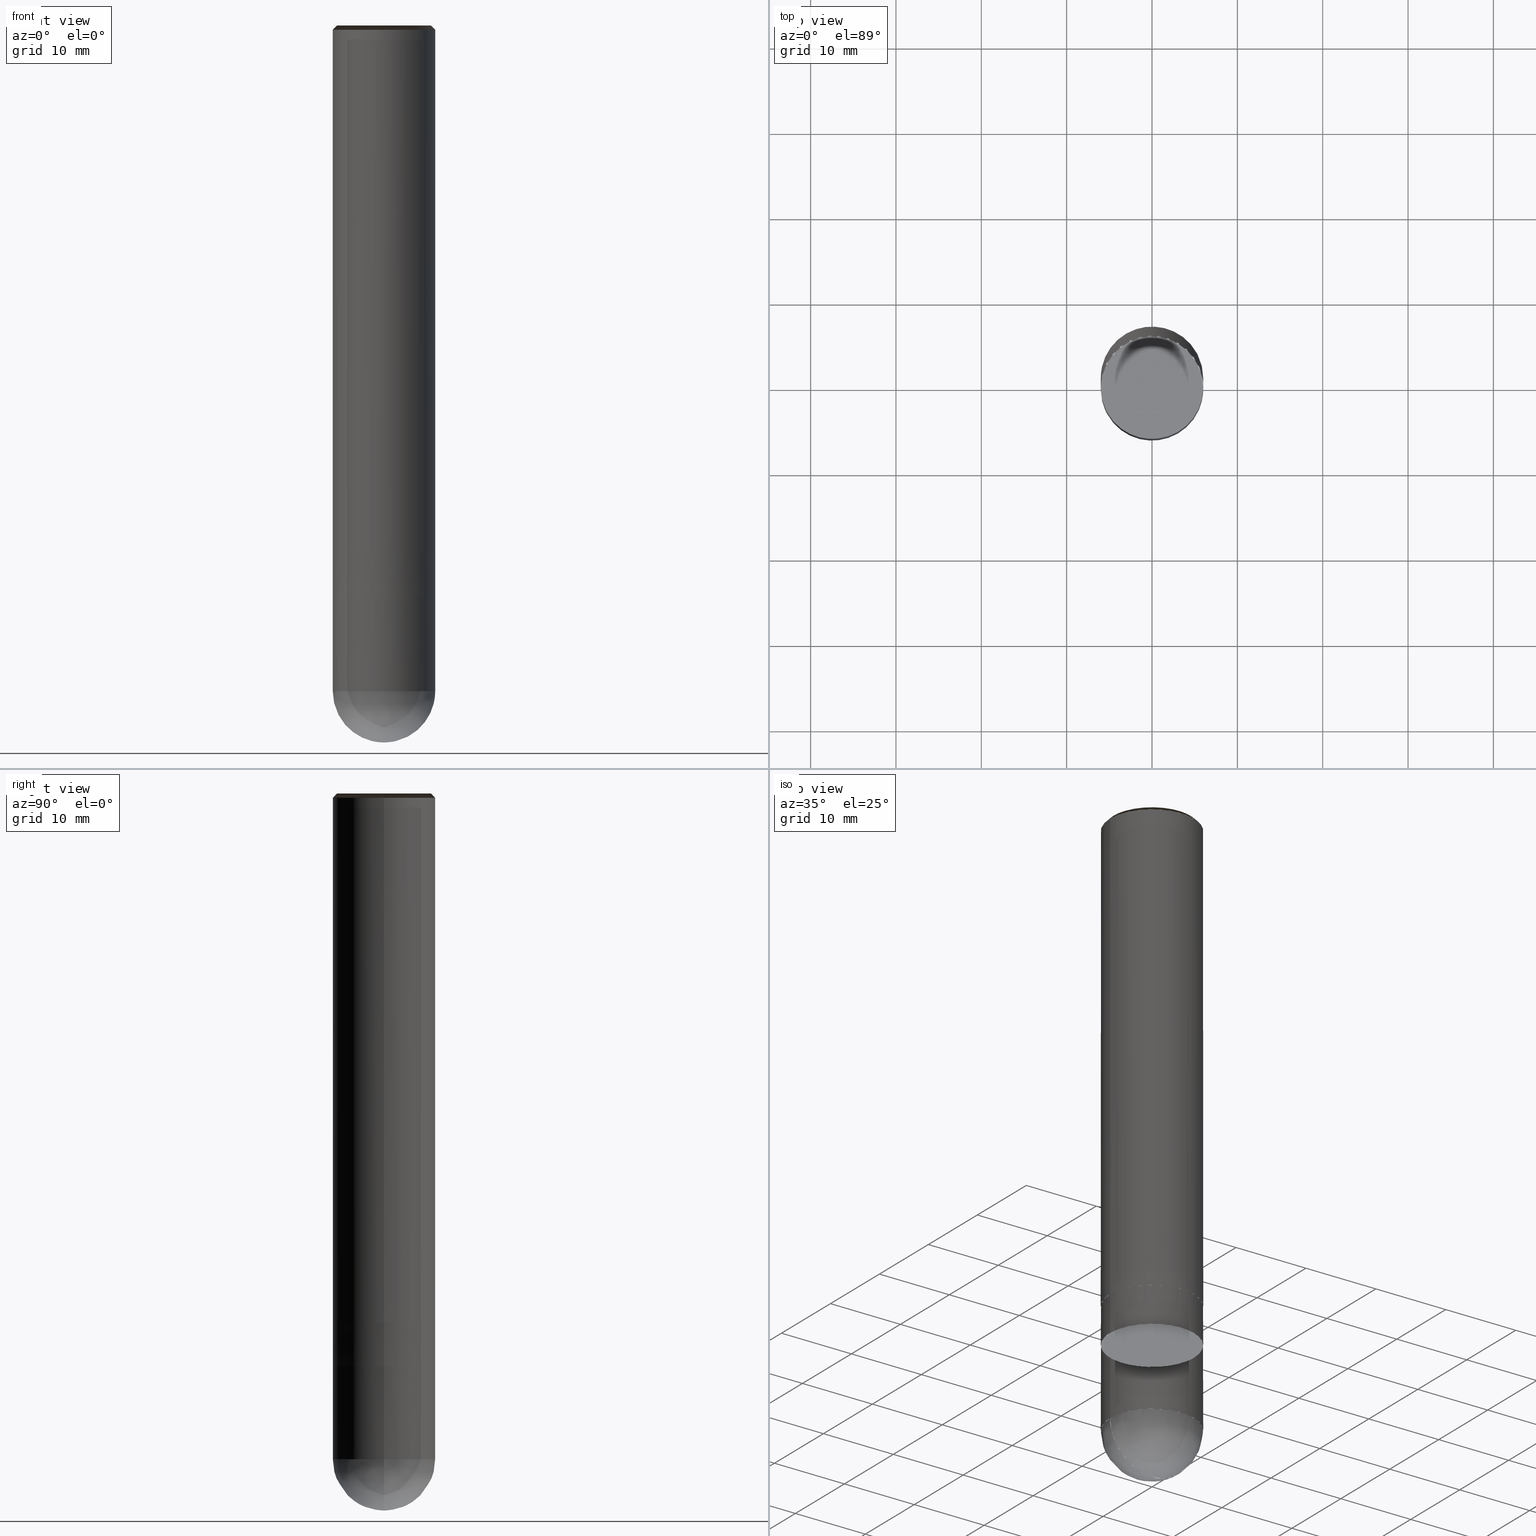
[diagram: canonical four-view strip — front | top / right | iso, engineering-drawing reading convention]
A machine part, canonical four-view strip (front | top / right | iso — engineering-drawing reading convention). The complete STEP part file that produces these views, byte-faithful:
ISO-10303-21;
HEADER;
/* Generated by ISBE GmbH (www.isbe.de) */
/* OPTION: using custom schema-name function */

FILE_DESCRIPTION(
/* description */ (''),
/* implementation_level */ '2;1');

FILE_NAME(
/*name*/ 'Drawing No  1241200   Issue 1',
/*time_stamp*/'2021-9-29T7:48:27',
/*author*/ ('ISBE GmbH'),
/*organization*/ ('ISBE GmbH'),
/*preprocessor_version*/ 'STEP IO v1.0',
/*originating_system*/ '',
/*authorisation*/ '');

FILE_SCHEMA (('AUTOMOTIVE_DESIGN'));
ENDSEC;

DATA;
#10=SHAPE_DEFINITION_REPRESENTATION(#11,#57);
#11=PRODUCT_DEFINITION_SHAPE('Document','',#13);
#12=PRODUCT_DEFINITION_CONTEXT('3D Mechanical Parts',#17,'design');
#13=PRODUCT_DEFINITION('A','First version',#14,#12);
#14=PRODUCT_DEFINITION_FORMATION_WITH_SPECIFIED_SOURCE('A','First version',#19,.MADE.);
#15=PRODUCT_RELATED_PRODUCT_CATEGORY('tool','tool',(#19));
#16=APPLICATION_PROTOCOL_DEFINITION('Draft International Standard', 'automotive_design',1999,#17);
#17=APPLICATION_CONTEXT('data for automotive mechanical design processes');
#18=PRODUCT_CONTEXT('3D Mechanical Parts',#17,'mechanical');
#19=PRODUCT('Document','Document','ISBE converted to STEP',(#18));
#20=(
LENGTH_UNIT()
NAMED_UNIT(*)
SI_UNIT(.MILLI.,.METRE.)
);
#21=(
NAMED_UNIT(*)
PLANE_ANGLE_UNIT()
SI_UNIT($,.RADIAN.)
);
#22=DIMENSIONAL_EXPONENTS(0.,0.,0.,0.,0.,0.,0.);
#23=PLANE_ANGLE_MEASURE_WITH_UNIT(PLANE_ANGLE_MEASURE(0.01745329252),#21);
#24=(
CONVERSION_BASED_UNIT('DEGREES',#23)
NAMED_UNIT(#22)
PLANE_ANGLE_UNIT()
);
#25=(
NAMED_UNIT(*)
SI_UNIT($,.STERADIAN.)
SOLID_ANGLE_UNIT()
);
#26=UNCERTAINTY_MEASURE_WITH_UNIT(LENGTH_MEASURE(0.001),#20, 'DISTANCE_ACCURACY_VALUE', 'Maximum model space distance between geometric entities at asserted connectivities');
#27=(
GEOMETRIC_REPRESENTATION_CONTEXT(3)
GLOBAL_UNCERTAINTY_ASSIGNED_CONTEXT((#26))
GLOBAL_UNIT_ASSIGNED_CONTEXT((#25,#24,#20))
REPRESENTATION_CONTEXT('ID1','3D')
);
#28=CARTESIAN_POINT('',(0.0,0.0,0.0));
#29=DIRECTION('',(1.0,0.0,0.0));
#30=DIRECTION('',(0.0,0.0,1.0));
#31=AXIS2_PLACEMENT_3D('',#28,#30,#29);
#32=CARTESIAN_POINT('',(0.0,0.0,0.0));
#33=DIRECTION('',(1.0,0.0,0.0));
#34=DIRECTION('',(0.0,0.0,1.0));
#35=AXIS2_PLACEMENT_3D('',#32,#34,#33);
#36=CARTESIAN_POINT('',(0.0,0.0,0.0));
#37=DIRECTION('',(1.0,0.0,0.0));
#38=DIRECTION('',(0.0,0.0,1.0));
#39=AXIS2_PLACEMENT_3D('',#36,#38,#37);
#40=CARTESIAN_POINT('',(0.0,0.0,0.0));
#41=DIRECTION('',(0.0,0.0,1.0));
#42=DIRECTION('',(1.0,0.0,0.0));
#43=AXIS2_PLACEMENT_3D('MCS',#40,#42,#41);
#44=CARTESIAN_POINT('',(0.0,0.0,62.0));
#45=DIRECTION('',(0.0,0.0,1.0));
#46=DIRECTION('',(1.0,0.0,0.0));
#47=AXIS2_PLACEMENT_3D('PCS',#44,#46,#45);
#48=CARTESIAN_POINT('',(0.0,0.0,-22.0));
#49=DIRECTION('',(0.0,0.0,1.0));
#50=DIRECTION('',(1.0,0.0,0.0));
#51=AXIS2_PLACEMENT_3D('CIP',#48,#50,#49);
#52=CARTESIAN_POINT('',(0.0,-6.0,-22.0));
#53=DIRECTION('',(0.0,0.0,1.0));
#54=DIRECTION('',(1.0,0.0,0.0));
#55=AXIS2_PLACEMENT_3D('CRP',#52,#54,#53);
#57=SHAPE_REPRESENTATION('Document',(#31,#35,#39,#43,#47,#51,#55),#27);
#58=DIRECTION('',(1.0,0.0,0.0));
#59=DIRECTION('',(0.0,0.0,1.0));
#60=CARTESIAN_POINT('',(-0.059996944139,-0.000605552642,-21.999038205596));
#61=CARTESIAN_POINT('',(-0.058115524625,-0.183318074099,-21.996917297204));
#62=CARTESIAN_POINT('',(-0.055748747635,-0.380357500674,-21.987672356502));
#63=CARTESIAN_POINT('',(-0.052736526354,-0.573719472346,-21.972274677695));
#64=CARTESIAN_POINT('',(-0.048718910756,-0.765714655098,-21.950740082939));
#65=CARTESIAN_POINT('',(-0.043361532276,-0.956617128911,-21.923090700487));
#66=CARTESIAN_POINT('',(-0.036340212354,-1.146375922958,-21.889354941946));
#67=CARTESIAN_POINT('',(-0.027340378313,-1.334845639567,-21.849567473091));
#68=CARTESIAN_POINT('',(-0.016058204912,-1.521842784204,-21.803769178234));
#69=CARTESIAN_POINT('',(-0.002202112718,-1.707164099507,-21.75200711822));
#70=CARTESIAN_POINT('',(0.014505649784,-1.890593661393,-21.694334482064));
#71=CARTESIAN_POINT('',(0.034327418646,-2.071905977038,-21.630810532299));
#72=CARTESIAN_POINT('',(0.05750855197,-2.250867491589,-21.561500544076));
#73=CARTESIAN_POINT('',(0.084275908777,-2.42723743101,-21.486475738095));
#74=CARTESIAN_POINT('',(0.11483638083,-2.60076838111,-21.405813207415));
#75=CARTESIAN_POINT('',(0.149375487487,-2.771206791551,-21.319595838238));
#76=CARTESIAN_POINT('',(0.18805604323,-2.938293500489,-21.22791222474));
#77=CARTESIAN_POINT('',(0.231016907556,-3.101764330843,-21.130856578032));
#78=CARTESIAN_POINT('',(0.278371827082,-3.261350786052,-21.028528629351));
#79=CARTESIAN_POINT('',(0.330208379857,-3.41678086015,-20.921033527582));
#80=CARTESIAN_POINT('',(0.386587031985,-3.56777996902,-20.808481731208));
#81=CARTESIAN_POINT('',(0.447540316664,-3.714072004384,-20.690988894808));
#82=CARTESIAN_POINT('',(0.513072145583,-3.855380508176,-20.568675750215));
#83=CARTESIAN_POINT('',(0.583157262367,-3.991429961932,-20.441667982452));
#84=CARTESIAN_POINT('',(0.657740847263,-4.121947183256,-20.310096100586));
#85=CARTESIAN_POINT('',(0.736738281702,-4.246662819269,-20.174095303621));
#86=CARTESIAN_POINT('',(0.820035080515,-4.365312924987,-20.033805341568));
#87=CARTESIAN_POINT('',(0.907486998663,-4.477640612852,-19.889370371847));
#88=CARTESIAN_POINT('',(0.998920318168,-4.583397758123,-19.740938811152));
#89=CARTESIAN_POINT('',(1.094132319653,-4.682346743509,-19.588663182947));
#90=CARTESIAN_POINT('',(1.192891941426,-4.774262225273,-19.432699960733));
#91=CARTESIAN_POINT('',(1.294940627444,-4.85893290215,-19.273209407263));
#92=CARTESIAN_POINT('',(1.399993363811,-4.936163267723,-19.110355409863));
#93=CARTESIAN_POINT('',(1.507739901594,-5.005775326434,-18.944305312024));
#94=CARTESIAN_POINT('',(1.617846161903,-5.067610253227,-18.775229741445));
#95=CARTESIAN_POINT('',(1.729955817221,-5.121529976864,-18.603302434705));
#96=CARTESIAN_POINT('',(1.843692041009,-5.167418667248,-18.428700058734));
#97=CARTESIAN_POINT('',(1.958659415677,-5.205184107708,-18.251602029276));
#98=CARTESIAN_POINT('',(2.074445987115,-5.234758934009,-18.072190326528));
#99=CARTESIAN_POINT('',(2.190625452144,-5.256101722954,-17.890649308142));
#100=CARTESIAN_POINT('',(2.306759463527,-5.269197914814,-17.707165519786));
#101=CARTESIAN_POINT('',(2.422400035625,-5.274060555362,-17.521927503457));
#102=CARTESIAN_POINT('',(2.537092032348,-5.270730845114,-17.335125603738));
#103=CARTESIAN_POINT('',(2.650375717837,-5.259278485356,-17.146951772208));
#104=CARTESIAN_POINT('',(2.761789349354,-5.239801812663,-16.9575993702));
#105=CARTESIAN_POINT('',(2.870871791052,-5.212427715954,-16.767262970107));
#106=CARTESIAN_POINT('',(2.977165126855,-5.177311332466,-16.576138155446));
#107=CARTESIAN_POINT('',(3.080217250411,-5.134635521543,-16.384421319884));
#108=CARTESIAN_POINT('',(3.179584410182,-5.084610117604,-16.19230946543));
#109=CARTESIAN_POINT('',(3.274833688039,-5.02747096617,-16.0));
#110=CARTESIAN_POINT('',(3.322759605844,-4.995925199777,-15.900621118012));
#111=CARTESIAN_POINT('',(3.370381673068,-4.96392257976,-15.801242236025));
#112=CARTESIAN_POINT('',(3.4176955349,-4.931466032604,-15.701863354037));
#113=CARTESIAN_POINT('',(3.464696864711,-4.898558526308,-15.60248447205));
#114=CARTESIAN_POINT('',(3.511381364454,-4.865203070106,-15.503105590062));
#115=CARTESIAN_POINT('',(3.557744765053,-4.831402714196,-15.403726708075));
#116=CARTESIAN_POINT('',(3.603782826794,-4.797160549461,-15.304347826087));
#117=CARTESIAN_POINT('',(3.649491339717,-4.762479707183,-15.204968944099));
#118=CARTESIAN_POINT('',(3.694866123994,-4.727363358761,-15.105590062112));
#119=CARTESIAN_POINT('',(3.739903030318,-4.691814715419,-15.006211180124));
#120=CARTESIAN_POINT('',(3.784597940277,-4.65583702791,-14.906832298137));
#121=CARTESIAN_POINT('',(3.828946766733,-4.619433586223,-14.807453416149));
#122=CARTESIAN_POINT('',(3.872945454198,-4.58260771928,-14.708074534161));
#123=CARTESIAN_POINT('',(3.9165899792,-4.545362794633,-14.608695652174));
#124=CARTESIAN_POINT('',(3.959876350655,-4.507702218151,-14.509316770186));
#125=CARTESIAN_POINT('',(4.00280061023,-4.469629433716,-14.409937888199));
#126=CARTESIAN_POINT('',(4.045358832706,-4.431147922903,-14.310559006211));
#127=CARTESIAN_POINT('',(4.087547126334,-4.392261204664,-14.211180124224));
#128=CARTESIAN_POINT('',(4.129361633197,-4.352972835004,-14.111801242236));
#129=CARTESIAN_POINT('',(4.170798529555,-4.313286406658,-14.012422360248));
#130=CARTESIAN_POINT('',(4.211854026202,-4.273205548761,-13.913043478261));
#131=CARTESIAN_POINT('',(4.252524368808,-4.232733926518,-13.813664596273));
#132=CARTESIAN_POINT('',(4.292805838263,-4.191875240865,-13.714285714286));
#133=CARTESIAN_POINT('',(4.332694751017,-4.150633228136,-13.614906832298));
#134=CARTESIAN_POINT('',(4.37218745942,-4.109011659717,-13.515527950311));
#135=CARTESIAN_POINT('',(4.411280352051,-4.067014341702,-13.416149068323));
#136=CARTESIAN_POINT('',(4.449969854051,-4.024645114546,-13.316770186335));
#137=CARTESIAN_POINT('',(4.488252427447,-3.981907852715,-13.217391304348));
#138=CARTESIAN_POINT('',(4.526124571482,-3.938806464328,-13.11801242236));
#139=CARTESIAN_POINT('',(4.563582822926,-3.895344890801,-13.018633540373));
#140=CARTESIAN_POINT('',(4.600623756402,-3.85152710649,-12.919254658385));
#141=CARTESIAN_POINT('',(4.637243984692,-3.807357118323,-12.819875776398));
#142=CARTESIAN_POINT('',(4.673440159049,-3.762838965434,-12.72049689441));
#143=CARTESIAN_POINT('',(4.709208969506,-3.717976718798,-12.621118012422));
#144=CARTESIAN_POINT('',(4.744547145174,-3.672774480855,-12.521739130435));
#145=CARTESIAN_POINT('',(4.779451454546,-3.627236385133,-12.422360248447));
#146=CARTESIAN_POINT('',(4.813918705789,-3.581366595876,-12.32298136646));
#147=CARTESIAN_POINT('',(4.847945747035,-3.535169307658,-12.223602484472));
#148=CARTESIAN_POINT('',(4.881529466674,-3.488648745001,-12.124223602484));
#149=CARTESIAN_POINT('',(4.914666793633,-3.44180916199,-12.024844720497));
#150=CARTESIAN_POINT('',(4.947354697663,-3.394654841882,-11.925465838509));
#151=CARTESIAN_POINT('',(4.979590189609,-3.347190096716,-11.826086956522));
#152=CARTESIAN_POINT('',(5.011370321689,-3.299419266916,-11.726708074534));
#153=CARTESIAN_POINT('',(5.04269218776,-3.2513467209,-11.627329192547));
#154=CARTESIAN_POINT('',(5.073552923587,-3.202976854672,-11.527950310559));
#155=CARTESIAN_POINT('',(5.103949707102,-3.154314091427,-11.428571428571));
#156=CARTESIAN_POINT('',(5.133879758664,-3.105362881144,-11.329192546584));
#157=CARTESIAN_POINT('',(5.163340341311,-3.056127700178,-11.229813664596));
#158=CARTESIAN_POINT('',(5.192328761013,-3.006613050852,-11.130434782609));
#159=CARTESIAN_POINT('',(5.220842366918,-2.956823461046,-11.031055900621));
#160=CARTESIAN_POINT('',(5.248878551591,-2.906763483782,-10.931677018634));
#161=CARTESIAN_POINT('',(5.276434751256,-2.856437696807,-10.832298136646));
#162=CARTESIAN_POINT('',(5.30350844603,-2.805850702174,-10.732919254658));
#163=CARTESIAN_POINT('',(5.330097160152,-2.755007125824,-10.633540372671));
#164=CARTESIAN_POINT('',(5.35619846221,-2.703911617161,-10.534161490683));
#165=CARTESIAN_POINT('',(5.381809965365,-2.652568848626,-10.434782608696));
#166=CARTESIAN_POINT('',(5.406929327566,-2.600983515271,-10.335403726708));
#167=CARTESIAN_POINT('',(5.431554251766,-2.54916033433,-10.23602484472));
#168=CARTESIAN_POINT('',(5.455682486134,-2.497104044787,-10.136645962733));
#169=CARTESIAN_POINT('',(5.479311824257,-2.444819406942,-10.037267080745));
#170=CARTESIAN_POINT('',(5.502440105344,-2.392311201977,-9.937888198758));
#171=CARTESIAN_POINT('',(5.525065214424,-2.339584231518,-9.83850931677));
#172=CARTESIAN_POINT('',(5.547185082537,-2.286643317195,-9.739130434783));
#173=CARTESIAN_POINT('',(5.568797686929,-2.233493300204,-9.639751552795));
#174=CARTESIAN_POINT('',(5.589901051227,-2.180139040862,-9.540372670807));
#175=CARTESIAN_POINT('',(5.61049324563,-2.126585418161,-9.44099378882));
#176=CARTESIAN_POINT('',(5.63057238708,-2.072837329327,-9.341614906832));
#177=CARTESIAN_POINT('',(5.650136639434,-2.018899689367,-9.242236024845));
#178=CARTESIAN_POINT('',(5.669184213635,-1.964777430621,-9.142857142857));
#179=CARTESIAN_POINT('',(5.687713367871,-1.910475502313,-9.04347826087));
#180=CARTESIAN_POINT('',(5.705722407741,-1.855998870096,-8.944099378882));
#181=CARTESIAN_POINT('',(5.723209686403,-1.8013525156,-8.844720496894));
#182=CARTESIAN_POINT('',(5.740173604729,-1.746541435974,-8.745341614907));
#183=CARTESIAN_POINT('',(5.756612611448,-1.691570643432,-8.645962732919));
#184=CARTESIAN_POINT('',(5.772525203292,-1.63644516479,-8.546583850932));
#185=CARTESIAN_POINT('',(5.787909925129,-1.581170041012,-8.447204968944));
#186=CARTESIAN_POINT('',(5.802765370101,-1.525750326745,-8.347826086957));
#187=CARTESIAN_POINT('',(5.817090179746,-1.470191089859,-8.248447204969));
#188=CARTESIAN_POINT('',(5.83088304413,-1.414497410983,-8.149068322981));
#189=CARTESIAN_POINT('',(5.84414270196,-1.358674383038,-8.049689440994));
#190=CARTESIAN_POINT('',(5.856867940704,-1.302727110776,-7.950310559006));
#191=CARTESIAN_POINT('',(5.869057596699,-1.246660710308,-7.850931677019));
#192=CARTESIAN_POINT('',(5.880710555259,-1.190480308641,-7.751552795031));
#193=CARTESIAN_POINT('',(5.891825750777,-1.134191043205,-7.652173913043));
#194=CARTESIAN_POINT('',(5.902402166819,-1.077798061386,-7.552795031056));
#195=CARTESIAN_POINT('',(5.912438836224,-1.021306520055,-7.453416149068));
#196=CARTESIAN_POINT('',(5.921934841186,-0.964721585095,-7.354037267081));
#197=CARTESIAN_POINT('',(5.93088931334,-0.908048430929,-7.254658385093));
#198=CARTESIAN_POINT('',(5.939301433842,-0.851292240048,-7.155279503106));
#199=CARTESIAN_POINT('',(5.947170433443,-0.794458202535,-7.055900621118));
#200=CARTESIAN_POINT('',(5.954495592562,-0.737551515595,-6.95652173913));
#201=CARTESIAN_POINT('',(5.961276241347,-0.680577383072,-6.857142857143));
#202=CARTESIAN_POINT('',(5.96751175974,-0.62354101498,-6.757763975155));
#203=CARTESIAN_POINT('',(5.973201577533,-0.566447627025,-6.658385093168));
#204=CARTESIAN_POINT('',(5.978345174418,-0.509302440126,-6.55900621118));
#205=CARTESIAN_POINT('',(5.982942080038,-0.452110679937,-6.459627329193));
#206=CARTESIAN_POINT('',(5.986991874028,-0.394877576376,-6.360248447205));
#207=CARTESIAN_POINT('',(5.990494186054,-0.337608363135,-6.260869565217));
#208=CARTESIAN_POINT('',(5.993448695845,-0.280308277214,-6.16149068323));
#209=CARTESIAN_POINT('',(5.995855133226,-0.222982558432,-6.062111801242));
#210=CARTESIAN_POINT('',(5.99771327814,-0.165636448955,-5.962732919255));
#211=CARTESIAN_POINT('',(5.999022960668,-0.108275192812,-5.863354037267));
#212=CARTESIAN_POINT('',(5.999784061046,-0.050904035416,-5.76397515528));
#213=CARTESIAN_POINT('',(5.999996509674,0.006471776912,-5.664596273292));
#214=CARTESIAN_POINT('',(5.999660287126,0.063846997426,-5.565217391304));
#215=CARTESIAN_POINT('',(5.998775424148,0.121216379436,-5.465838509317));
#216=CARTESIAN_POINT('',(5.997342001655,0.178574676784,-5.366459627329));
#217=CARTESIAN_POINT('',(5.995360150727,0.235916644326,-5.267080745342));
#218=CARTESIAN_POINT('',(5.992830052596,0.293237038412,-5.167701863354));
#219=CARTESIAN_POINT('',(5.989751938627,0.350530617364,-5.068322981366));
#220=CARTESIAN_POINT('',(0.059996944139,0.000605552642,-21.999038205596));
#221=CARTESIAN_POINT('',(0.058115524625,0.183318074099,-21.996917297204));
#222=CARTESIAN_POINT('',(0.055748747635,0.380357500674,-21.987672356502));
#223=CARTESIAN_POINT('',(0.052736526354,0.573719472346,-21.972274677695));
#224=CARTESIAN_POINT('',(0.048718910756,0.765714655098,-21.950740082939));
#225=CARTESIAN_POINT('',(0.043361532276,0.956617128911,-21.923090700487));
#226=CARTESIAN_POINT('',(0.036340212354,1.146375922958,-21.889354941946));
#227=CARTESIAN_POINT('',(0.027340378313,1.334845639567,-21.849567473091));
#228=CARTESIAN_POINT('',(0.016058204912,1.521842784204,-21.803769178234));
#229=CARTESIAN_POINT('',(0.002202112718,1.707164099507,-21.75200711822));
#230=CARTESIAN_POINT('',(-0.014505649784,1.890593661393,-21.694334482064));
#231=CARTESIAN_POINT('',(-0.034327418646,2.071905977038,-21.630810532299));
#232=CARTESIAN_POINT('',(-0.05750855197,2.250867491589,-21.561500544076));
#233=CARTESIAN_POINT('',(-0.084275908777,2.42723743101,-21.486475738095));
#234=CARTESIAN_POINT('',(-0.11483638083,2.60076838111,-21.405813207415));
#235=CARTESIAN_POINT('',(-0.149375487487,2.771206791551,-21.319595838238));
#236=CARTESIAN_POINT('',(-0.18805604323,2.938293500489,-21.22791222474));
#237=CARTESIAN_POINT('',(-0.231016907556,3.101764330843,-21.130856578032));
#238=CARTESIAN_POINT('',(-0.278371827082,3.261350786052,-21.028528629351));
#239=CARTESIAN_POINT('',(-0.330208379857,3.41678086015,-20.921033527582));
#240=CARTESIAN_POINT('',(-0.386587031985,3.56777996902,-20.808481731208));
#241=CARTESIAN_POINT('',(-0.447540316664,3.714072004384,-20.690988894808));
#242=CARTESIAN_POINT('',(-0.513072145583,3.855380508176,-20.568675750215));
#243=CARTESIAN_POINT('',(-0.583157262367,3.991429961932,-20.441667982452));
#244=CARTESIAN_POINT('',(-0.657740847263,4.121947183256,-20.310096100586));
#245=CARTESIAN_POINT('',(-0.736738281702,4.246662819269,-20.174095303621));
#246=CARTESIAN_POINT('',(-0.820035080515,4.365312924987,-20.033805341568));
#247=CARTESIAN_POINT('',(-0.907486998663,4.477640612852,-19.889370371847));
#248=CARTESIAN_POINT('',(-0.998920318168,4.583397758123,-19.740938811152));
#249=CARTESIAN_POINT('',(-1.094132319653,4.682346743509,-19.588663182947));
#250=CARTESIAN_POINT('',(-1.192891941426,4.774262225273,-19.432699960733));
#251=CARTESIAN_POINT('',(-1.294940627444,4.85893290215,-19.273209407263));
#252=CARTESIAN_POINT('',(-1.399993363811,4.936163267723,-19.110355409863));
#253=CARTESIAN_POINT('',(-1.507739901594,5.005775326434,-18.944305312024));
#254=CARTESIAN_POINT('',(-1.617846161903,5.067610253227,-18.775229741445));
#255=CARTESIAN_POINT('',(-1.729955817221,5.121529976864,-18.603302434705));
#256=CARTESIAN_POINT('',(-1.843692041009,5.167418667248,-18.428700058734));
#257=CARTESIAN_POINT('',(-1.958659415677,5.205184107708,-18.251602029276));
#258=CARTESIAN_POINT('',(-2.074445987115,5.234758934009,-18.072190326528));
#259=CARTESIAN_POINT('',(-2.190625452144,5.256101722954,-17.890649308142));
#260=CARTESIAN_POINT('',(-2.306759463527,5.269197914814,-17.707165519786));
#261=CARTESIAN_POINT('',(-2.422400035625,5.274060555362,-17.521927503457));
#262=CARTESIAN_POINT('',(-2.537092032348,5.270730845114,-17.335125603738));
#263=CARTESIAN_POINT('',(-2.650375717837,5.259278485356,-17.146951772208));
#264=CARTESIAN_POINT('',(-2.761789349354,5.239801812663,-16.9575993702));
#265=CARTESIAN_POINT('',(-2.870871791052,5.212427715954,-16.767262970107));
#266=CARTESIAN_POINT('',(-2.977165126855,5.177311332466,-16.576138155446));
#267=CARTESIAN_POINT('',(-3.080217250411,5.134635521543,-16.384421319884));
#268=CARTESIAN_POINT('',(-3.179584410182,5.084610117604,-16.19230946543));
#269=CARTESIAN_POINT('',(-3.274833688039,5.02747096617,-16.0));
#270=CARTESIAN_POINT('',(-3.322759605844,4.995925199777,-15.900621118012));
#271=CARTESIAN_POINT('',(-3.370381673068,4.96392257976,-15.801242236025));
#272=CARTESIAN_POINT('',(-3.4176955349,4.931466032604,-15.701863354037));
#273=CARTESIAN_POINT('',(-3.464696864711,4.898558526308,-15.60248447205));
#274=CARTESIAN_POINT('',(-3.511381364454,4.865203070106,-15.503105590062));
#275=CARTESIAN_POINT('',(-3.557744765053,4.831402714196,-15.403726708075));
#276=CARTESIAN_POINT('',(-3.603782826794,4.797160549461,-15.304347826087));
#277=CARTESIAN_POINT('',(-3.649491339717,4.762479707183,-15.204968944099));
#278=CARTESIAN_POINT('',(-3.694866123994,4.727363358761,-15.105590062112));
#279=CARTESIAN_POINT('',(-3.739903030318,4.691814715419,-15.006211180124));
#280=CARTESIAN_POINT('',(-3.784597940277,4.65583702791,-14.906832298137));
#281=CARTESIAN_POINT('',(-3.828946766733,4.619433586223,-14.807453416149));
#282=CARTESIAN_POINT('',(-3.872945454198,4.58260771928,-14.708074534161));
#283=CARTESIAN_POINT('',(-3.9165899792,4.545362794633,-14.608695652174));
#284=CARTESIAN_POINT('',(-3.959876350655,4.507702218151,-14.509316770186));
#285=CARTESIAN_POINT('',(-4.00280061023,4.469629433716,-14.409937888199));
#286=CARTESIAN_POINT('',(-4.045358832706,4.431147922903,-14.310559006211));
#287=CARTESIAN_POINT('',(-4.087547126334,4.392261204664,-14.211180124224));
#288=CARTESIAN_POINT('',(-4.129361633197,4.352972835004,-14.111801242236));
#289=CARTESIAN_POINT('',(-4.170798529555,4.313286406658,-14.012422360248));
#290=CARTESIAN_POINT('',(-4.211854026202,4.273205548761,-13.913043478261));
#291=CARTESIAN_POINT('',(-4.252524368808,4.232733926518,-13.813664596273));
#292=CARTESIAN_POINT('',(-4.292805838263,4.191875240865,-13.714285714286));
#293=CARTESIAN_POINT('',(-4.332694751017,4.150633228136,-13.614906832298));
#294=CARTESIAN_POINT('',(-4.37218745942,4.109011659717,-13.515527950311));
#295=CARTESIAN_POINT('',(-4.411280352051,4.067014341702,-13.416149068323));
#296=CARTESIAN_POINT('',(-4.449969854051,4.024645114546,-13.316770186335));
#297=CARTESIAN_POINT('',(-4.488252427447,3.981907852715,-13.217391304348));
#298=CARTESIAN_POINT('',(-4.526124571482,3.938806464328,-13.11801242236));
#299=CARTESIAN_POINT('',(-4.563582822926,3.895344890801,-13.018633540373));
#300=CARTESIAN_POINT('',(-4.600623756402,3.85152710649,-12.919254658385));
#301=CARTESIAN_POINT('',(-4.637243984692,3.807357118323,-12.819875776398));
#302=CARTESIAN_POINT('',(-4.673440159049,3.762838965434,-12.72049689441));
#303=CARTESIAN_POINT('',(-4.709208969506,3.717976718799,-12.621118012422));
#304=CARTESIAN_POINT('',(-4.744547145174,3.672774480855,-12.521739130435));
#305=CARTESIAN_POINT('',(-4.779451454546,3.627236385133,-12.422360248447));
#306=CARTESIAN_POINT('',(-4.813918705789,3.581366595876,-12.32298136646));
#307=CARTESIAN_POINT('',(-4.847945747035,3.535169307658,-12.223602484472));
#308=CARTESIAN_POINT('',(-4.881529466674,3.488648745001,-12.124223602484));
#309=CARTESIAN_POINT('',(-4.914666793633,3.44180916199,-12.024844720497));
#310=CARTESIAN_POINT('',(-4.947354697663,3.394654841882,-11.925465838509));
#311=CARTESIAN_POINT('',(-4.979590189609,3.347190096716,-11.826086956522));
#312=CARTESIAN_POINT('',(-5.011370321688,3.299419266916,-11.726708074534));
#313=CARTESIAN_POINT('',(-5.04269218776,3.2513467209,-11.627329192547));
#314=CARTESIAN_POINT('',(-5.073552923587,3.202976854672,-11.527950310559));
#315=CARTESIAN_POINT('',(-5.103949707102,3.154314091427,-11.428571428571));
#316=CARTESIAN_POINT('',(-5.133879758663,3.105362881144,-11.329192546584));
#317=CARTESIAN_POINT('',(-5.163340341311,3.056127700178,-11.229813664596));
#318=CARTESIAN_POINT('',(-5.192328761013,3.006613050852,-11.130434782609));
#319=CARTESIAN_POINT('',(-5.220842366918,2.956823461046,-11.031055900621));
#320=CARTESIAN_POINT('',(-5.248878551591,2.906763483782,-10.931677018634));
#321=CARTESIAN_POINT('',(-5.276434751256,2.856437696807,-10.832298136646));
#322=CARTESIAN_POINT('',(-5.30350844603,2.805850702174,-10.732919254658));
#323=CARTESIAN_POINT('',(-5.330097160152,2.755007125824,-10.633540372671));
#324=CARTESIAN_POINT('',(-5.35619846221,2.703911617161,-10.534161490683));
#325=CARTESIAN_POINT('',(-5.381809965365,2.652568848626,-10.434782608696));
#326=CARTESIAN_POINT('',(-5.406929327566,2.600983515271,-10.335403726708));
#327=CARTESIAN_POINT('',(-5.431554251766,2.54916033433,-10.23602484472));
#328=CARTESIAN_POINT('',(-5.455682486134,2.497104044787,-10.136645962733));
#329=CARTESIAN_POINT('',(-5.479311824257,2.444819406942,-10.037267080745));
#330=CARTESIAN_POINT('',(-5.502440105344,2.392311201977,-9.937888198758));
#331=CARTESIAN_POINT('',(-5.525065214424,2.339584231518,-9.83850931677));
#332=CARTESIAN_POINT('',(-5.547185082537,2.286643317195,-9.739130434783));
#333=CARTESIAN_POINT('',(-5.568797686929,2.233493300204,-9.639751552795));
#334=CARTESIAN_POINT('',(-5.589901051227,2.180139040862,-9.540372670807));
#335=CARTESIAN_POINT('',(-5.61049324563,2.126585418161,-9.44099378882));
#336=CARTESIAN_POINT('',(-5.63057238708,2.072837329327,-9.341614906832));
#337=CARTESIAN_POINT('',(-5.650136639434,2.018899689367,-9.242236024845));
#338=CARTESIAN_POINT('',(-5.669184213635,1.964777430621,-9.142857142857));
#339=CARTESIAN_POINT('',(-5.687713367871,1.910475502313,-9.04347826087));
#340=CARTESIAN_POINT('',(-5.705722407741,1.855998870096,-8.944099378882));
#341=CARTESIAN_POINT('',(-5.723209686403,1.8013525156,-8.844720496894));
#342=CARTESIAN_POINT('',(-5.740173604729,1.746541435974,-8.745341614907));
#343=CARTESIAN_POINT('',(-5.756612611448,1.691570643432,-8.645962732919));
#344=CARTESIAN_POINT('',(-5.772525203292,1.63644516479,-8.546583850932));
#345=CARTESIAN_POINT('',(-5.787909925129,1.581170041012,-8.447204968944));
#346=CARTESIAN_POINT('',(-5.802765370101,1.525750326745,-8.347826086957));
#347=CARTESIAN_POINT('',(-5.817090179746,1.470191089859,-8.248447204969));
#348=CARTESIAN_POINT('',(-5.83088304413,1.414497410983,-8.149068322981));
#349=CARTESIAN_POINT('',(-5.84414270196,1.358674383038,-8.049689440994));
#350=CARTESIAN_POINT('',(-5.856867940704,1.302727110776,-7.950310559006));
#351=CARTESIAN_POINT('',(-5.869057596699,1.246660710308,-7.850931677019));
#352=CARTESIAN_POINT('',(-5.880710555259,1.190480308641,-7.751552795031));
#353=CARTESIAN_POINT('',(-5.891825750777,1.134191043205,-7.652173913043));
#354=CARTESIAN_POINT('',(-5.902402166819,1.077798061386,-7.552795031056));
#355=CARTESIAN_POINT('',(-5.912438836224,1.021306520056,-7.453416149068));
#356=CARTESIAN_POINT('',(-5.921934841186,0.964721585095,-7.354037267081));
#357=CARTESIAN_POINT('',(-5.93088931334,0.908048430929,-7.254658385093));
#358=CARTESIAN_POINT('',(-5.939301433842,0.851292240048,-7.155279503106));
#359=CARTESIAN_POINT('',(-5.947170433443,0.794458202535,-7.055900621118));
#360=CARTESIAN_POINT('',(-5.954495592562,0.737551515595,-6.95652173913));
#361=CARTESIAN_POINT('',(-5.961276241347,0.680577383072,-6.857142857143));
#362=CARTESIAN_POINT('',(-5.96751175974,0.62354101498,-6.757763975155));
#363=CARTESIAN_POINT('',(-5.973201577533,0.566447627025,-6.658385093168));
#364=CARTESIAN_POINT('',(-5.978345174418,0.509302440126,-6.55900621118));
#365=CARTESIAN_POINT('',(-5.982942080038,0.452110679937,-6.459627329193));
#366=CARTESIAN_POINT('',(-5.986991874028,0.394877576376,-6.360248447205));
#367=CARTESIAN_POINT('',(-5.990494186054,0.337608363135,-6.260869565217));
#368=CARTESIAN_POINT('',(-5.993448695845,0.280308277214,-6.16149068323));
#369=CARTESIAN_POINT('',(-5.995855133226,0.222982558432,-6.062111801242));
#370=CARTESIAN_POINT('',(-5.99771327814,0.165636448955,-5.962732919255));
#371=CARTESIAN_POINT('',(-5.999022960668,0.108275192812,-5.863354037267));
#372=CARTESIAN_POINT('',(-5.999784061046,0.050904035416,-5.76397515528));
#373=CARTESIAN_POINT('',(-5.999996509674,-0.006471776912,-5.664596273292));
#374=CARTESIAN_POINT('',(-5.999660287126,-0.063846997426,-5.565217391304));
#375=CARTESIAN_POINT('',(-5.998775424148,-0.121216379436,-5.465838509317));
#376=CARTESIAN_POINT('',(-5.997342001655,-0.178574676784,-5.366459627329));
#377=CARTESIAN_POINT('',(-5.995360150727,-0.235916644326,-5.267080745342));
#378=CARTESIAN_POINT('',(-5.992830052596,-0.293237038412,-5.167701863354));
#379=CARTESIAN_POINT('',(-5.989751938627,-0.350530617364,-5.068322981366));
#380=CARTESIAN_POINT('',(0.0,0.0,-22.0));
#381=CARTESIAN_POINT('',(6.0,0.0,-22.0));
#382=CARTESIAN_POINT('',(6.0,6.0,-22.0));
#383=CARTESIAN_POINT('',(0.0,6.0,-22.0));
#384=CARTESIAN_POINT('',(-6.0,6.0,-22.0));
#385=CARTESIAN_POINT('',(-6.0,0.0,-22.0));
#386=CARTESIAN_POINT('',(6.0,0.0,-16.0));
#387=CARTESIAN_POINT('',(6.0,6.0,-16.0));
#388=CARTESIAN_POINT('',(0.0,6.0,-16.0));
#389=CARTESIAN_POINT('',(-6.0,6.0,-16.0));
#390=CARTESIAN_POINT('',(-6.0,0.0,-16.0));
#391=CARTESIAN_POINT('',(6.0,0.0,-5.0));
#392=CARTESIAN_POINT('',(6.0,6.0,-5.0));
#393=CARTESIAN_POINT('',(0.0,6.0,-5.0));
#394=CARTESIAN_POINT('',(-6.0,6.0,-5.0));
#395=CARTESIAN_POINT('',(-6.0,0.0,-5.0));
#396=CARTESIAN_POINT('',(0.0,0.0,-5.0));
#397=CARTESIAN_POINT('',(-6.0,-6.0,-22.0));
#398=CARTESIAN_POINT('',(0.0,-6.0,-22.0));
#399=CARTESIAN_POINT('',(6.0,-6.0,-22.0));
#400=CARTESIAN_POINT('',(-6.0,-6.0,-16.0));
#401=CARTESIAN_POINT('',(0.0,-6.0,-16.0));
#402=CARTESIAN_POINT('',(6.0,-6.0,-16.0));
#403=CARTESIAN_POINT('',(-6.0,-6.0,-5.0));
#404=CARTESIAN_POINT('',(0.0,-6.0,-5.0));
#405=CARTESIAN_POINT('',(6.0,-6.0,-5.0));
#406=CARTESIAN_POINT('',(6.0,0.0,0.0));
#407=CARTESIAN_POINT('',(6.0,6.0,0.0));
#408=CARTESIAN_POINT('',(0.0,6.0,0.0));
#409=CARTESIAN_POINT('',(-6.0,6.0,0.0));
#410=CARTESIAN_POINT('',(-6.0,0.0,0.0));
#411=CARTESIAN_POINT('',(6.0,0.0,61.5));
#412=CARTESIAN_POINT('',(6.0,6.0,61.5));
#413=CARTESIAN_POINT('',(0.0,6.0,61.5));
#414=CARTESIAN_POINT('',(-6.0,6.0,61.5));
#415=CARTESIAN_POINT('',(-6.0,0.0,61.5));
#416=CARTESIAN_POINT('',(5.5,0.0,62.0));
#417=CARTESIAN_POINT('',(5.5,5.5,62.0));
#418=CARTESIAN_POINT('',(0.0,5.5,62.0));
#419=CARTESIAN_POINT('',(-5.5,5.5,62.0));
#420=CARTESIAN_POINT('',(-5.5,0.0,62.0));
#421=CARTESIAN_POINT('',(0.0,0.0,62.0));
#422=CARTESIAN_POINT('',(-6.0,-6.0,0.0));
#423=CARTESIAN_POINT('',(0.0,-6.0,0.0));
#424=CARTESIAN_POINT('',(6.0,-6.0,0.0));
#425=CARTESIAN_POINT('',(-6.0,-6.0,61.5));
#426=CARTESIAN_POINT('',(0.0,-6.0,61.5));
#427=CARTESIAN_POINT('',(6.0,-6.0,61.5));
#428=CARTESIAN_POINT('',(-5.5,-5.5,62.0));
#429=CARTESIAN_POINT('',(0.0,-5.5,62.0));
#430=CARTESIAN_POINT('',(5.5,-5.5,62.0));
#431=(
BOUNDED_CURVE()
B_SPLINE_CURVE(1,(#60,#61,#62,#63,#64,#65,#66,#67,#68,#69,#70,#71,#72,#73,#74,#75,#76,#77,#78,#79,#80,#81,#82,#83,#84,#85,#86,#87,#88,#89,#90,#91,#92,#93,#94,#95,#96,#97,#98,#99,#100,#101,#102,#103,#104,#105,#106,#107,#108,#109,#110,#111,#112,#113,#114,#115,#116,#117,#118,#119,#120,#121,#122,#123,#124,#125,#126,#127,#128,#129,#130,#131,#132,#133,#134,#135,#136,#137,#138,#139,#140,#141,#142,#143,#144,#145,#146,#147,#148,#149,#150,#151,#152,#153,#154,#155,#156,#157,#158,#159,#160,#161,#162,#163,#164,#165,#166,#167,#168,#169,#170,#171,#172,#173,#174,#175,#176,#177,#178,#179,#180,#181,#182,#183,#184,#185,#186,#187,#188,#189,#190,#191,#192,#193,#194,#195,#196,#197,#198,#199,#200,#201,#202,#203,#204,#205,#206,#207,#208,#209,#210,#211,#212,#213,#214,#215,#216,#217,#218,#219),.UNSPECIFIED.,.F.,.F.)
B_SPLINE_CURVE_WITH_KNOTS((2,1,1,1,1,1,1,1,1,1,1,1,1,1,1,1,1,1,1,1,1,1,1,1,1,1,1,1,1,1,1,1,1,1,1,1,1,1,1,1,1,1,1,1,1,1,1,1,1,1,1,1,1,1,1,1,1,1,1,1,1,1,1,1,1,1,1,1,1,1,1,1,1,1,1,1,1,1,1,1,1,1,1,1,1,1,1,1,1,1,1,1,1,1,1,1,1,1,1,1,1,1,1,1,1,1,1,1,1,1,1,1,1,1,1,1,1,1,1,1,1,1,1,1,1,1,1,1,1,1,1,1,1,1,1,1,1,1,1,1,1,1,1,1,1,1,1,1,1,1,1,1,1,1,1,1,1,1,1,2),
(0.0,0.008078319595,0.016799240394,0.025375471665,0.033918255269,0.042449010093,0.050975050684,0.059499838895,0.068025524542,0.0765537988,0.085086242119,0.09362448573,0.102170292343,0.110725596371,0.119292520896,0.127873379406,0.136470666444,0.145087039546,0.153725293993,0.162388331604,0.171079124576,0.179800675399,0.188555973805,0.197347951781,0.206179437634,0.215053110105,0.22397145348,0.232936714614,0.241950862677,0.251015552357,0.260132091143,0.269301411197,0.278524046189,0.287800113389,0.297129301152,0.306510861857,0.315943610269,0.325425927186,0.334955768195,0.344530677284,0.354147805013,0.363803930922,0.373495489827,0.38321860162,0.392969104208,0.402742589189,0.412534439884,0.422339871323,0.432153971814,0.441971745676,0.447044729806,0.452117713936,0.457190698066,0.462263682197,0.467336666327,0.472409650457,0.477482634587,0.482555618717,0.487628602848,0.492701586978,0.497774571108,0.502847555238,0.507920539369,0.512993523499,0.518066507629,0.523139491759,0.528212475889,0.53328546002,0.53835844415,0.54343142828,0.54850441241,0.55357739654,0.558650380671,0.563723364801,0.568796348931,0.573869333061,0.578942317192,0.584015301322,0.589088285452,0.594161269582,0.599234253712,0.604307237843,0.609380221973,0.614453206103,0.619526190233,0.624599174364,0.629672158494,0.634745142624,0.639818126754,0.644891110884,0.649964095015,0.655037079145,0.660110063275,0.665183047405,0.670256031536,0.675329015666,0.680401999796,0.685474983926,0.690547968056,0.695620952187,0.700693936317,0.705766920447,0.710839904577,0.715912888708,0.720985872838,0.726058856968,0.731131841098,0.736204825228,0.741277809359,0.746350793489,0.751423777619,0.756496761749,0.76156974588,0.76664273001,0.77171571414,0.77678869827,0.7818616824,0.786934666531,0.792007650661,0.797080634791,0.802153618921,0.807226603052,0.812299587182,0.817372571312,0.822445555442,0.827518539572,0.832591523703,0.837664507833,0.842737491963,0.847810476093,0.852883460224,0.857956444354,0.863029428484,0.868102412614,0.873175396744,0.878248380875,0.883321365005,0.888394349135,0.893467333265,0.898540317396,0.903613301526,0.908686285656,0.913759269786,0.918832253916,0.923905238047,0.928978222177,0.934051206307,0.939124190437,0.944197174568,0.949270158698,0.954343142828,0.959416126958,0.964489111088,0.969562095219,0.974635079349,0.979708063479,0.984781047609,0.98985403174,0.99492701587,1.0),.UNSPECIFIED.)
CURVE()
GEOMETRIC_REPRESENTATION_ITEM()
RATIONAL_B_SPLINE_CURVE((1.0,1.0,1.0,1.0,1.0,1.0,1.0,1.0,1.0,1.0,1.0,1.0,1.0,1.0,1.0,1.0,1.0,1.0,1.0,1.0,1.0,1.0,1.0,1.0,1.0,1.0,1.0,1.0,1.0,1.0,1.0,1.0,1.0,1.0,1.0,1.0,1.0,1.0,1.0,1.0,1.0,1.0,1.0,1.0,1.0,1.0,1.0,1.0,1.0,1.0,1.0,1.0,1.0,1.0,1.0,1.0,1.0,1.0,1.0,1.0,1.0,1.0,1.0,1.0,1.0,1.0,1.0,1.0,1.0,1.0,1.0,1.0,1.0,1.0,1.0,1.0,1.0,1.0,1.0,1.0,1.0,1.0,1.0,1.0,1.0,1.0,1.0,1.0,1.0,1.0,1.0,1.0,1.0,1.0,1.0,1.0,1.0,1.0,1.0,1.0,1.0,1.0,1.0,1.0,1.0,1.0,1.0,1.0,1.0,1.0,1.0,1.0,1.0,1.0,1.0,1.0,1.0,1.0,1.0,1.0,1.0,1.0,1.0,1.0,1.0,1.0,1.0,1.0,1.0,1.0,1.0,1.0,1.0,1.0,1.0,1.0,1.0,1.0,1.0,1.0,1.0,1.0,1.0,1.0,1.0,1.0,1.0,1.0,1.0,1.0,1.0,1.0,1.0,1.0,1.0,1.0,1.0,1.0,1.0,1.0))
REPRESENTATION_ITEM('')
);
#432=(
BOUNDED_CURVE()
B_SPLINE_CURVE(1,(#220,#221,#222,#223,#224,#225,#226,#227,#228,#229,#230,#231,#232,#233,#234,#235,#236,#237,#238,#239,#240,#241,#242,#243,#244,#245,#246,#247,#248,#249,#250,#251,#252,#253,#254,#255,#256,#257,#258,#259,#260,#261,#262,#263,#264,#265,#266,#267,#268,#269,#270,#271,#272,#273,#274,#275,#276,#277,#278,#279,#280,#281,#282,#283,#284,#285,#286,#287,#288,#289,#290,#291,#292,#293,#294,#295,#296,#297,#298,#299,#300,#301,#302,#303,#304,#305,#306,#307,#308,#309,#310,#311,#312,#313,#314,#315,#316,#317,#318,#319,#320,#321,#322,#323,#324,#325,#326,#327,#328,#329,#330,#331,#332,#333,#334,#335,#336,#337,#338,#339,#340,#341,#342,#343,#344,#345,#346,#347,#348,#349,#350,#351,#352,#353,#354,#355,#356,#357,#358,#359,#360,#361,#362,#363,#364,#365,#366,#367,#368,#369,#370,#371,#372,#373,#374,#375,#376,#377,#378,#379),.UNSPECIFIED.,.F.,.F.)
B_SPLINE_CURVE_WITH_KNOTS((2,1,1,1,1,1,1,1,1,1,1,1,1,1,1,1,1,1,1,1,1,1,1,1,1,1,1,1,1,1,1,1,1,1,1,1,1,1,1,1,1,1,1,1,1,1,1,1,1,1,1,1,1,1,1,1,1,1,1,1,1,1,1,1,1,1,1,1,1,1,1,1,1,1,1,1,1,1,1,1,1,1,1,1,1,1,1,1,1,1,1,1,1,1,1,1,1,1,1,1,1,1,1,1,1,1,1,1,1,1,1,1,1,1,1,1,1,1,1,1,1,1,1,1,1,1,1,1,1,1,1,1,1,1,1,1,1,1,1,1,1,1,1,1,1,1,1,1,1,1,1,1,1,1,1,1,1,1,1,2),
(0.0,0.008078319595,0.016799240394,0.025375471665,0.033918255269,0.042449010093,0.050975050684,0.059499838895,0.068025524542,0.0765537988,0.085086242119,0.09362448573,0.102170292343,0.110725596371,0.119292520896,0.127873379406,0.136470666444,0.145087039546,0.153725293993,0.162388331604,0.171079124576,0.179800675399,0.188555973805,0.197347951781,0.206179437634,0.215053110105,0.22397145348,0.232936714614,0.241950862677,0.251015552357,0.260132091143,0.269301411197,0.278524046189,0.287800113389,0.297129301152,0.306510861857,0.315943610269,0.325425927186,0.334955768195,0.344530677284,0.354147805013,0.363803930922,0.373495489827,0.38321860162,0.392969104208,0.402742589189,0.412534439884,0.422339871323,0.432153971814,0.441971745676,0.447044729806,0.452117713936,0.457190698066,0.462263682197,0.467336666327,0.472409650457,0.477482634587,0.482555618717,0.487628602848,0.492701586978,0.497774571108,0.502847555238,0.507920539369,0.512993523499,0.518066507629,0.523139491759,0.528212475889,0.53328546002,0.53835844415,0.54343142828,0.54850441241,0.55357739654,0.558650380671,0.563723364801,0.568796348931,0.573869333061,0.578942317192,0.584015301322,0.589088285452,0.594161269582,0.599234253712,0.604307237843,0.609380221973,0.614453206103,0.619526190233,0.624599174364,0.629672158494,0.634745142624,0.639818126754,0.644891110884,0.649964095015,0.655037079145,0.660110063275,0.665183047405,0.670256031536,0.675329015666,0.680401999796,0.685474983926,0.690547968056,0.695620952187,0.700693936317,0.705766920447,0.710839904577,0.715912888708,0.720985872838,0.726058856968,0.731131841098,0.736204825228,0.741277809359,0.746350793489,0.751423777619,0.756496761749,0.76156974588,0.76664273001,0.77171571414,0.77678869827,0.7818616824,0.786934666531,0.792007650661,0.797080634791,0.802153618921,0.807226603052,0.812299587182,0.817372571312,0.822445555442,0.827518539572,0.832591523703,0.837664507833,0.842737491963,0.847810476093,0.852883460224,0.857956444354,0.863029428484,0.868102412614,0.873175396744,0.878248380875,0.883321365005,0.888394349135,0.893467333265,0.898540317396,0.903613301526,0.908686285656,0.913759269786,0.918832253916,0.923905238047,0.928978222177,0.934051206307,0.939124190437,0.944197174568,0.949270158698,0.954343142828,0.959416126958,0.964489111088,0.969562095219,0.974635079349,0.979708063479,0.984781047609,0.98985403174,0.99492701587,1.0),.UNSPECIFIED.)
CURVE()
GEOMETRIC_REPRESENTATION_ITEM()
RATIONAL_B_SPLINE_CURVE((1.0,1.0,1.0,1.0,1.0,1.0,1.0,1.0,1.0,1.0,1.0,1.0,1.0,1.0,1.0,1.0,1.0,1.0,1.0,1.0,1.0,1.0,1.0,1.0,1.0,1.0,1.0,1.0,1.0,1.0,1.0,1.0,1.0,1.0,1.0,1.0,1.0,1.0,1.0,1.0,1.0,1.0,1.0,1.0,1.0,1.0,1.0,1.0,1.0,1.0,1.0,1.0,1.0,1.0,1.0,1.0,1.0,1.0,1.0,1.0,1.0,1.0,1.0,1.0,1.0,1.0,1.0,1.0,1.0,1.0,1.0,1.0,1.0,1.0,1.0,1.0,1.0,1.0,1.0,1.0,1.0,1.0,1.0,1.0,1.0,1.0,1.0,1.0,1.0,1.0,1.0,1.0,1.0,1.0,1.0,1.0,1.0,1.0,1.0,1.0,1.0,1.0,1.0,1.0,1.0,1.0,1.0,1.0,1.0,1.0,1.0,1.0,1.0,1.0,1.0,1.0,1.0,1.0,1.0,1.0,1.0,1.0,1.0,1.0,1.0,1.0,1.0,1.0,1.0,1.0,1.0,1.0,1.0,1.0,1.0,1.0,1.0,1.0,1.0,1.0,1.0,1.0,1.0,1.0,1.0,1.0,1.0,1.0,1.0,1.0,1.0,1.0,1.0,1.0,1.0,1.0,1.0,1.0,1.0,1.0))
REPRESENTATION_ITEM('')
);
#433=SHAPE_REPRESENTATION_RELATIONSHIP('','',#57,#434);
#434=GEOMETRICALLY_BOUNDED_WIREFRAME_SHAPE_REPRESENTATION('Curves',(#435,#31),#27);
#435=GEOMETRIC_CURVE_SET('CurveSet',(#431,#432));
#436=(
BOUNDED_SURFACE()
B_SPLINE_SURFACE(2,2,(
(#380,#380,#380,#380,#380),
(#381,#382,#383,#384,#385),
(#386,#387,#388,#389,#390)
), .UNSPECIFIED.,.F.,.F.,.F.)
B_SPLINE_SURFACE_WITH_KNOTS((3,3),(3,2,3),(
0.0,1.0),(
0.0,0.5,1.0), .UNSPECIFIED.)
GEOMETRIC_REPRESENTATION_ITEM()
RATIONAL_B_SPLINE_SURFACE(((1.0,0.707106781187,1.0,0.707106781187,1.0),
(0.707106781187,0.5,0.707106781187,0.5,0.707106781187),
(1.0,0.707106781187,1.0,0.707106781187,1.0)
))
REPRESENTATION_ITEM('')
SURFACE()
);
#437=(
BOUNDED_CURVE()
B_SPLINE_CURVE(2,(#390,#385,#380),.UNSPECIFIED.,.F.,.F.)
B_SPLINE_CURVE_WITH_KNOTS((3,3),
(0.0,1.0),.UNSPECIFIED.)
CURVE()
GEOMETRIC_REPRESENTATION_ITEM()
RATIONAL_B_SPLINE_CURVE((1.0,0.707106781187,1.0))
REPRESENTATION_ITEM('')
);
#438=(
BOUNDED_CURVE()
B_SPLINE_CURVE(2,(#380,#381,#386),.UNSPECIFIED.,.F.,.F.)
B_SPLINE_CURVE_WITH_KNOTS((3,3),
(0.0,1.0),.UNSPECIFIED.)
CURVE()
GEOMETRIC_REPRESENTATION_ITEM()
RATIONAL_B_SPLINE_CURVE((1.0,0.707106781187,1.0))
REPRESENTATION_ITEM('')
);
#439=(
BOUNDED_CURVE()
B_SPLINE_CURVE(2,(#386,#387,#388,#389,#390),.UNSPECIFIED.,.F.,.F.)
B_SPLINE_CURVE_WITH_KNOTS((3,2,3),
(0.0,0.5,1.0),.UNSPECIFIED.)
CURVE()
GEOMETRIC_REPRESENTATION_ITEM()
RATIONAL_B_SPLINE_CURVE((1.0,0.707106781187,1.0,0.707106781187,1.0))
REPRESENTATION_ITEM('')
);
#440=VERTEX_POINT('',#380);
#441=VERTEX_POINT('',#386);
#442=VERTEX_POINT('',#390);
#443=EDGE_CURVE('',#442,#440,#437,.T.);
#444=EDGE_CURVE('',#440,#441,#438,.T.);
#445=EDGE_CURVE('',#441,#442,#439,.T.);
#446=ORIENTED_EDGE('',*,*,#443,.T.);
#447=ORIENTED_EDGE('',*,*,#444,.T.);
#448=ORIENTED_EDGE('',*,*,#445,.T.);
#449=EDGE_LOOP('',(#446,#447,#448));
#450=FACE_OUTER_BOUND('',#449,.T.);
#451=ADVANCED_FACE('',(#450),#436,.T.);
#452=(
BOUNDED_SURFACE()
B_SPLINE_SURFACE(1,2,(
(#386,#387,#388,#389,#390),
(#391,#392,#393,#394,#395)
), .UNSPECIFIED.,.F.,.F.,.F.)
B_SPLINE_SURFACE_WITH_KNOTS((2,2),(3,2,3),(
0.0,1.0),(
0.0,0.5,1.0), .UNSPECIFIED.)
GEOMETRIC_REPRESENTATION_ITEM()
RATIONAL_B_SPLINE_SURFACE(((1.0,0.707106781187,1.0,0.707106781187,1.0),
(1.0,0.707106781187,1.0,0.707106781187,1.0)
))
REPRESENTATION_ITEM('')
SURFACE()
);
#453=(
BOUNDED_CURVE()
B_SPLINE_CURVE(2,(#390,#389,#388,#387,#386),.UNSPECIFIED.,.F.,.F.)
B_SPLINE_CURVE_WITH_KNOTS((3,2,3),
(0.0,0.5,1.0),.UNSPECIFIED.)
CURVE()
GEOMETRIC_REPRESENTATION_ITEM()
RATIONAL_B_SPLINE_CURVE((1.0,0.707106781187,1.0,0.707106781187,1.0))
REPRESENTATION_ITEM('')
);
#454=(
BOUNDED_CURVE()
B_SPLINE_CURVE(1,(#386,#391),.UNSPECIFIED.,.F.,.F.)
B_SPLINE_CURVE_WITH_KNOTS((2,2),
(0.0,1.0),.UNSPECIFIED.)
CURVE()
GEOMETRIC_REPRESENTATION_ITEM()
RATIONAL_B_SPLINE_CURVE((1.0,1.0))
REPRESENTATION_ITEM('')
);
#455=(
BOUNDED_CURVE()
B_SPLINE_CURVE(2,(#391,#392,#393,#394,#395),.UNSPECIFIED.,.F.,.F.)
B_SPLINE_CURVE_WITH_KNOTS((3,2,3),
(0.0,0.5,1.0),.UNSPECIFIED.)
CURVE()
GEOMETRIC_REPRESENTATION_ITEM()
RATIONAL_B_SPLINE_CURVE((1.0,0.707106781187,1.0,0.707106781187,1.0))
REPRESENTATION_ITEM('')
);
#456=(
BOUNDED_CURVE()
B_SPLINE_CURVE(1,(#395,#390),.UNSPECIFIED.,.F.,.F.)
B_SPLINE_CURVE_WITH_KNOTS((2,2),
(0.0,1.0),.UNSPECIFIED.)
CURVE()
GEOMETRIC_REPRESENTATION_ITEM()
RATIONAL_B_SPLINE_CURVE((1.0,1.0))
REPRESENTATION_ITEM('')
);
#457=VERTEX_POINT('',#386);
#458=VERTEX_POINT('',#390);
#459=VERTEX_POINT('',#391);
#460=VERTEX_POINT('',#395);
#461=EDGE_CURVE('',#458,#457,#453,.T.);
#462=EDGE_CURVE('',#457,#459,#454,.T.);
#463=EDGE_CURVE('',#459,#460,#455,.T.);
#464=EDGE_CURVE('',#460,#458,#456,.T.);
#465=ORIENTED_EDGE('',*,*,#461,.T.);
#466=ORIENTED_EDGE('',*,*,#462,.T.);
#467=ORIENTED_EDGE('',*,*,#463,.T.);
#468=ORIENTED_EDGE('',*,*,#464,.T.);
#469=EDGE_LOOP('',(#465,#466,#467,#468));
#470=FACE_OUTER_BOUND('',#469,.T.);
#471=ADVANCED_FACE('',(#470),#452,.T.);
#472=(
BOUNDED_SURFACE()
B_SPLINE_SURFACE(1,2,(
(#391,#392,#393,#394,#395),
(#396,#396,#396,#396,#396)
), .UNSPECIFIED.,.F.,.F.,.F.)
B_SPLINE_SURFACE_WITH_KNOTS((2,2),(3,2,3),(
0.0,1.0),(
0.0,0.5,1.0), .UNSPECIFIED.)
GEOMETRIC_REPRESENTATION_ITEM()
RATIONAL_B_SPLINE_SURFACE(((1.0,0.707106781187,1.0,0.707106781187,1.0),
(1.0,0.707106781187,1.0,0.707106781187,1.0)
))
REPRESENTATION_ITEM('')
SURFACE()
);
#473=(
BOUNDED_CURVE()
B_SPLINE_CURVE(2,(#395,#394,#393,#392,#391),.UNSPECIFIED.,.F.,.F.)
B_SPLINE_CURVE_WITH_KNOTS((3,2,3),
(0.0,0.5,1.0),.UNSPECIFIED.)
CURVE()
GEOMETRIC_REPRESENTATION_ITEM()
RATIONAL_B_SPLINE_CURVE((1.0,0.707106781187,1.0,0.707106781187,1.0))
REPRESENTATION_ITEM('')
);
#474=(
BOUNDED_CURVE()
B_SPLINE_CURVE(1,(#391,#396),.UNSPECIFIED.,.F.,.F.)
B_SPLINE_CURVE_WITH_KNOTS((2,2),
(0.0,1.0),.UNSPECIFIED.)
CURVE()
GEOMETRIC_REPRESENTATION_ITEM()
RATIONAL_B_SPLINE_CURVE((1.0,1.0))
REPRESENTATION_ITEM('')
);
#475=(
BOUNDED_CURVE()
B_SPLINE_CURVE(1,(#396,#395),.UNSPECIFIED.,.F.,.F.)
B_SPLINE_CURVE_WITH_KNOTS((2,2),
(0.0,1.0),.UNSPECIFIED.)
CURVE()
GEOMETRIC_REPRESENTATION_ITEM()
RATIONAL_B_SPLINE_CURVE((1.0,1.0))
REPRESENTATION_ITEM('')
);
#476=VERTEX_POINT('',#391);
#477=VERTEX_POINT('',#395);
#478=VERTEX_POINT('',#396);
#479=EDGE_CURVE('',#477,#476,#473,.T.);
#480=EDGE_CURVE('',#476,#478,#474,.T.);
#481=EDGE_CURVE('',#478,#477,#475,.T.);
#482=ORIENTED_EDGE('',*,*,#479,.T.);
#483=ORIENTED_EDGE('',*,*,#480,.T.);
#484=ORIENTED_EDGE('',*,*,#481,.T.);
#485=EDGE_LOOP('',(#482,#483,#484));
#486=FACE_OUTER_BOUND('',#485,.T.);
#487=ADVANCED_FACE('',(#486),#472,.T.);
#488=(
BOUNDED_SURFACE()
B_SPLINE_SURFACE(2,2,(
(#380,#380,#380,#380,#380),
(#385,#397,#398,#399,#381),
(#390,#400,#401,#402,#386)
), .UNSPECIFIED.,.F.,.F.,.F.)
B_SPLINE_SURFACE_WITH_KNOTS((3,3),(3,2,3),(
0.0,1.0),(
0.0,0.5,1.0), .UNSPECIFIED.)
GEOMETRIC_REPRESENTATION_ITEM()
RATIONAL_B_SPLINE_SURFACE(((1.0,0.707106781187,1.0,0.707106781187,1.0),
(0.707106781187,0.5,0.707106781187,0.5,0.707106781187),
(1.0,0.707106781187,1.0,0.707106781187,1.0)
))
REPRESENTATION_ITEM('')
SURFACE()
);
#489=(
BOUNDED_CURVE()
B_SPLINE_CURVE(2,(#386,#381,#380),.UNSPECIFIED.,.F.,.F.)
B_SPLINE_CURVE_WITH_KNOTS((3,3),
(0.0,1.0),.UNSPECIFIED.)
CURVE()
GEOMETRIC_REPRESENTATION_ITEM()
RATIONAL_B_SPLINE_CURVE((1.0,0.707106781187,1.0))
REPRESENTATION_ITEM('')
);
#490=(
BOUNDED_CURVE()
B_SPLINE_CURVE(2,(#380,#385,#390),.UNSPECIFIED.,.F.,.F.)
B_SPLINE_CURVE_WITH_KNOTS((3,3),
(0.0,1.0),.UNSPECIFIED.)
CURVE()
GEOMETRIC_REPRESENTATION_ITEM()
RATIONAL_B_SPLINE_CURVE((1.0,0.707106781187,1.0))
REPRESENTATION_ITEM('')
);
#491=(
BOUNDED_CURVE()
B_SPLINE_CURVE(2,(#390,#400,#401,#402,#386),.UNSPECIFIED.,.F.,.F.)
B_SPLINE_CURVE_WITH_KNOTS((3,2,3),
(0.0,0.5,1.0),.UNSPECIFIED.)
CURVE()
GEOMETRIC_REPRESENTATION_ITEM()
RATIONAL_B_SPLINE_CURVE((1.0,0.707106781187,1.0,0.707106781187,1.0))
REPRESENTATION_ITEM('')
);
#492=VERTEX_POINT('',#380);
#493=VERTEX_POINT('',#386);
#494=VERTEX_POINT('',#390);
#495=EDGE_CURVE('',#493,#492,#489,.T.);
#496=EDGE_CURVE('',#492,#494,#490,.T.);
#497=EDGE_CURVE('',#494,#493,#491,.T.);
#498=ORIENTED_EDGE('',*,*,#495,.T.);
#499=ORIENTED_EDGE('',*,*,#496,.T.);
#500=ORIENTED_EDGE('',*,*,#497,.T.);
#501=EDGE_LOOP('',(#498,#499,#500));
#502=FACE_OUTER_BOUND('',#501,.T.);
#503=ADVANCED_FACE('',(#502),#488,.T.);
#504=(
BOUNDED_SURFACE()
B_SPLINE_SURFACE(1,2,(
(#390,#400,#401,#402,#386),
(#395,#403,#404,#405,#391)
), .UNSPECIFIED.,.F.,.F.,.F.)
B_SPLINE_SURFACE_WITH_KNOTS((2,2),(3,2,3),(
0.0,1.0),(
0.0,0.5,1.0), .UNSPECIFIED.)
GEOMETRIC_REPRESENTATION_ITEM()
RATIONAL_B_SPLINE_SURFACE(((1.0,0.707106781187,1.0,0.707106781187,1.0),
(1.0,0.707106781187,1.0,0.707106781187,1.0)
))
REPRESENTATION_ITEM('')
SURFACE()
);
#505=(
BOUNDED_CURVE()
B_SPLINE_CURVE(2,(#386,#402,#401,#400,#390),.UNSPECIFIED.,.F.,.F.)
B_SPLINE_CURVE_WITH_KNOTS((3,2,3),
(0.0,0.5,1.0),.UNSPECIFIED.)
CURVE()
GEOMETRIC_REPRESENTATION_ITEM()
RATIONAL_B_SPLINE_CURVE((1.0,0.707106781187,1.0,0.707106781187,1.0))
REPRESENTATION_ITEM('')
);
#506=(
BOUNDED_CURVE()
B_SPLINE_CURVE(1,(#390,#395),.UNSPECIFIED.,.F.,.F.)
B_SPLINE_CURVE_WITH_KNOTS((2,2),
(0.0,1.0),.UNSPECIFIED.)
CURVE()
GEOMETRIC_REPRESENTATION_ITEM()
RATIONAL_B_SPLINE_CURVE((1.0,1.0))
REPRESENTATION_ITEM('')
);
#507=(
BOUNDED_CURVE()
B_SPLINE_CURVE(2,(#395,#403,#404,#405,#391),.UNSPECIFIED.,.F.,.F.)
B_SPLINE_CURVE_WITH_KNOTS((3,2,3),
(0.0,0.5,1.0),.UNSPECIFIED.)
CURVE()
GEOMETRIC_REPRESENTATION_ITEM()
RATIONAL_B_SPLINE_CURVE((1.0,0.707106781187,1.0,0.707106781187,1.0))
REPRESENTATION_ITEM('')
);
#508=(
BOUNDED_CURVE()
B_SPLINE_CURVE(1,(#391,#386),.UNSPECIFIED.,.F.,.F.)
B_SPLINE_CURVE_WITH_KNOTS((2,2),
(0.0,1.0),.UNSPECIFIED.)
CURVE()
GEOMETRIC_REPRESENTATION_ITEM()
RATIONAL_B_SPLINE_CURVE((1.0,1.0))
REPRESENTATION_ITEM('')
);
#509=VERTEX_POINT('',#386);
#510=VERTEX_POINT('',#390);
#511=VERTEX_POINT('',#391);
#512=VERTEX_POINT('',#395);
#513=EDGE_CURVE('',#509,#510,#505,.T.);
#514=EDGE_CURVE('',#510,#512,#506,.T.);
#515=EDGE_CURVE('',#512,#511,#507,.T.);
#516=EDGE_CURVE('',#511,#509,#508,.T.);
#517=ORIENTED_EDGE('',*,*,#513,.T.);
#518=ORIENTED_EDGE('',*,*,#514,.T.);
#519=ORIENTED_EDGE('',*,*,#515,.T.);
#520=ORIENTED_EDGE('',*,*,#516,.T.);
#521=EDGE_LOOP('',(#517,#518,#519,#520));
#522=FACE_OUTER_BOUND('',#521,.T.);
#523=ADVANCED_FACE('',(#522),#504,.T.);
#524=(
BOUNDED_SURFACE()
B_SPLINE_SURFACE(1,2,(
(#395,#403,#404,#405,#391),
(#396,#396,#396,#396,#396)
), .UNSPECIFIED.,.F.,.F.,.F.)
B_SPLINE_SURFACE_WITH_KNOTS((2,2),(3,2,3),(
0.0,1.0),(
0.0,0.5,1.0), .UNSPECIFIED.)
GEOMETRIC_REPRESENTATION_ITEM()
RATIONAL_B_SPLINE_SURFACE(((1.0,0.707106781187,1.0,0.707106781187,1.0),
(1.0,0.707106781187,1.0,0.707106781187,1.0)
))
REPRESENTATION_ITEM('')
SURFACE()
);
#525=(
BOUNDED_CURVE()
B_SPLINE_CURVE(2,(#391,#405,#404,#403,#395),.UNSPECIFIED.,.F.,.F.)
B_SPLINE_CURVE_WITH_KNOTS((3,2,3),
(0.0,0.5,1.0),.UNSPECIFIED.)
CURVE()
GEOMETRIC_REPRESENTATION_ITEM()
RATIONAL_B_SPLINE_CURVE((1.0,0.707106781187,1.0,0.707106781187,1.0))
REPRESENTATION_ITEM('')
);
#526=(
BOUNDED_CURVE()
B_SPLINE_CURVE(1,(#395,#396),.UNSPECIFIED.,.F.,.F.)
B_SPLINE_CURVE_WITH_KNOTS((2,2),
(0.0,1.0),.UNSPECIFIED.)
CURVE()
GEOMETRIC_REPRESENTATION_ITEM()
RATIONAL_B_SPLINE_CURVE((1.0,1.0))
REPRESENTATION_ITEM('')
);
#527=(
BOUNDED_CURVE()
B_SPLINE_CURVE(1,(#396,#391),.UNSPECIFIED.,.F.,.F.)
B_SPLINE_CURVE_WITH_KNOTS((2,2),
(0.0,1.0),.UNSPECIFIED.)
CURVE()
GEOMETRIC_REPRESENTATION_ITEM()
RATIONAL_B_SPLINE_CURVE((1.0,1.0))
REPRESENTATION_ITEM('')
);
#528=VERTEX_POINT('',#391);
#529=VERTEX_POINT('',#395);
#530=VERTEX_POINT('',#396);
#531=EDGE_CURVE('',#528,#529,#525,.T.);
#532=EDGE_CURVE('',#529,#530,#526,.T.);
#533=EDGE_CURVE('',#530,#528,#527,.T.);
#534=ORIENTED_EDGE('',*,*,#531,.T.);
#535=ORIENTED_EDGE('',*,*,#532,.T.);
#536=ORIENTED_EDGE('',*,*,#533,.T.);
#537=EDGE_LOOP('',(#534,#535,#536));
#538=FACE_OUTER_BOUND('',#537,.T.);
#539=ADVANCED_FACE('',(#538),#524,.T.);
#540=CLOSED_SHELL('',(#451,#471,#487,#503,#523,#539));
#541=SHAPE_REPRESENTATION_RELATIONSHIP('','',#57,#542);
#542=ADVANCED_BREP_SHAPE_REPRESENTATION('Solid0',(#543,#31),#27);
#543=MANIFOLD_SOLID_BREP('brep',#540);
#544=(
BOUNDED_SURFACE()
B_SPLINE_SURFACE(1,2,(
(#396,#396,#396,#396,#396),
(#391,#392,#393,#394,#395)
), .UNSPECIFIED.,.F.,.F.,.F.)
B_SPLINE_SURFACE_WITH_KNOTS((2,2),(3,2,3),(
0.0,1.0),(
0.0,0.5,1.0), .UNSPECIFIED.)
GEOMETRIC_REPRESENTATION_ITEM()
RATIONAL_B_SPLINE_SURFACE(((1.0,0.707106781187,1.0,0.707106781187,1.0),
(1.0,0.707106781187,1.0,0.707106781187,1.0)
))
REPRESENTATION_ITEM('')
SURFACE()
);
#545=(
BOUNDED_CURVE()
B_SPLINE_CURVE(1,(#395,#396),.UNSPECIFIED.,.F.,.F.)
B_SPLINE_CURVE_WITH_KNOTS((2,2),
(0.0,1.0),.UNSPECIFIED.)
CURVE()
GEOMETRIC_REPRESENTATION_ITEM()
RATIONAL_B_SPLINE_CURVE((1.0,1.0))
REPRESENTATION_ITEM('')
);
#546=(
BOUNDED_CURVE()
B_SPLINE_CURVE(1,(#396,#391),.UNSPECIFIED.,.F.,.F.)
B_SPLINE_CURVE_WITH_KNOTS((2,2),
(0.0,1.0),.UNSPECIFIED.)
CURVE()
GEOMETRIC_REPRESENTATION_ITEM()
RATIONAL_B_SPLINE_CURVE((1.0,1.0))
REPRESENTATION_ITEM('')
);
#547=(
BOUNDED_CURVE()
B_SPLINE_CURVE(2,(#391,#392,#393,#394,#395),.UNSPECIFIED.,.F.,.F.)
B_SPLINE_CURVE_WITH_KNOTS((3,2,3),
(0.0,0.5,1.0),.UNSPECIFIED.)
CURVE()
GEOMETRIC_REPRESENTATION_ITEM()
RATIONAL_B_SPLINE_CURVE((1.0,0.707106781187,1.0,0.707106781187,1.0))
REPRESENTATION_ITEM('')
);
#548=VERTEX_POINT('',#391);
#549=VERTEX_POINT('',#395);
#550=VERTEX_POINT('',#396);
#551=EDGE_CURVE('',#549,#550,#545,.T.);
#552=EDGE_CURVE('',#550,#548,#546,.T.);
#553=EDGE_CURVE('',#548,#549,#547,.T.);
#554=ORIENTED_EDGE('',*,*,#551,.T.);
#555=ORIENTED_EDGE('',*,*,#552,.T.);
#556=ORIENTED_EDGE('',*,*,#553,.T.);
#557=EDGE_LOOP('',(#554,#555,#556));
#558=FACE_OUTER_BOUND('',#557,.T.);
#559=ADVANCED_FACE('',(#558),#544,.T.);
#560=(
BOUNDED_SURFACE()
B_SPLINE_SURFACE(1,2,(
(#391,#392,#393,#394,#395),
(#406,#407,#408,#409,#410)
), .UNSPECIFIED.,.F.,.F.,.F.)
B_SPLINE_SURFACE_WITH_KNOTS((2,2),(3,2,3),(
0.0,1.0),(
0.0,0.5,1.0), .UNSPECIFIED.)
GEOMETRIC_REPRESENTATION_ITEM()
RATIONAL_B_SPLINE_SURFACE(((1.0,0.707106781187,1.0,0.707106781187,1.0),
(1.0,0.707106781187,1.0,0.707106781187,1.0)
))
REPRESENTATION_ITEM('')
SURFACE()
);
#561=(
BOUNDED_CURVE()
B_SPLINE_CURVE(2,(#395,#394,#393,#392,#391),.UNSPECIFIED.,.F.,.F.)
B_SPLINE_CURVE_WITH_KNOTS((3,2,3),
(0.0,0.5,1.0),.UNSPECIFIED.)
CURVE()
GEOMETRIC_REPRESENTATION_ITEM()
RATIONAL_B_SPLINE_CURVE((1.0,0.707106781187,1.0,0.707106781187,1.0))
REPRESENTATION_ITEM('')
);
#562=(
BOUNDED_CURVE()
B_SPLINE_CURVE(1,(#391,#406),.UNSPECIFIED.,.F.,.F.)
B_SPLINE_CURVE_WITH_KNOTS((2,2),
(0.0,1.0),.UNSPECIFIED.)
CURVE()
GEOMETRIC_REPRESENTATION_ITEM()
RATIONAL_B_SPLINE_CURVE((1.0,1.0))
REPRESENTATION_ITEM('')
);
#563=(
BOUNDED_CURVE()
B_SPLINE_CURVE(2,(#406,#407,#408,#409,#410),.UNSPECIFIED.,.F.,.F.)
B_SPLINE_CURVE_WITH_KNOTS((3,2,3),
(0.0,0.5,1.0),.UNSPECIFIED.)
CURVE()
GEOMETRIC_REPRESENTATION_ITEM()
RATIONAL_B_SPLINE_CURVE((1.0,0.707106781187,1.0,0.707106781187,1.0))
REPRESENTATION_ITEM('')
);
#564=(
BOUNDED_CURVE()
B_SPLINE_CURVE(1,(#410,#395),.UNSPECIFIED.,.F.,.F.)
B_SPLINE_CURVE_WITH_KNOTS((2,2),
(0.0,1.0),.UNSPECIFIED.)
CURVE()
GEOMETRIC_REPRESENTATION_ITEM()
RATIONAL_B_SPLINE_CURVE((1.0,1.0))
REPRESENTATION_ITEM('')
);
#565=VERTEX_POINT('',#391);
#566=VERTEX_POINT('',#395);
#567=VERTEX_POINT('',#406);
#568=VERTEX_POINT('',#410);
#569=EDGE_CURVE('',#566,#565,#561,.T.);
#570=EDGE_CURVE('',#565,#567,#562,.T.);
#571=EDGE_CURVE('',#567,#568,#563,.T.);
#572=EDGE_CURVE('',#568,#566,#564,.T.);
#573=ORIENTED_EDGE('',*,*,#569,.T.);
#574=ORIENTED_EDGE('',*,*,#570,.T.);
#575=ORIENTED_EDGE('',*,*,#571,.T.);
#576=ORIENTED_EDGE('',*,*,#572,.T.);
#577=EDGE_LOOP('',(#573,#574,#575,#576));
#578=FACE_OUTER_BOUND('',#577,.T.);
#579=ADVANCED_FACE('',(#578),#560,.T.);
#580=(
BOUNDED_SURFACE()
B_SPLINE_SURFACE(1,2,(
(#406,#407,#408,#409,#410),
(#411,#412,#413,#414,#415)
), .UNSPECIFIED.,.F.,.F.,.F.)
B_SPLINE_SURFACE_WITH_KNOTS((2,2),(3,2,3),(
0.0,1.0),(
0.0,0.5,1.0), .UNSPECIFIED.)
GEOMETRIC_REPRESENTATION_ITEM()
RATIONAL_B_SPLINE_SURFACE(((1.0,0.707106781187,1.0,0.707106781187,1.0),
(1.0,0.707106781187,1.0,0.707106781187,1.0)
))
REPRESENTATION_ITEM('')
SURFACE()
);
#581=(
BOUNDED_CURVE()
B_SPLINE_CURVE(2,(#410,#409,#408,#407,#406),.UNSPECIFIED.,.F.,.F.)
B_SPLINE_CURVE_WITH_KNOTS((3,2,3),
(0.0,0.5,1.0),.UNSPECIFIED.)
CURVE()
GEOMETRIC_REPRESENTATION_ITEM()
RATIONAL_B_SPLINE_CURVE((1.0,0.707106781187,1.0,0.707106781187,1.0))
REPRESENTATION_ITEM('')
);
#582=(
BOUNDED_CURVE()
B_SPLINE_CURVE(1,(#406,#411),.UNSPECIFIED.,.F.,.F.)
B_SPLINE_CURVE_WITH_KNOTS((2,2),
(0.0,1.0),.UNSPECIFIED.)
CURVE()
GEOMETRIC_REPRESENTATION_ITEM()
RATIONAL_B_SPLINE_CURVE((1.0,1.0))
REPRESENTATION_ITEM('')
);
#583=(
BOUNDED_CURVE()
B_SPLINE_CURVE(2,(#411,#412,#413,#414,#415),.UNSPECIFIED.,.F.,.F.)
B_SPLINE_CURVE_WITH_KNOTS((3,2,3),
(0.0,0.5,1.0),.UNSPECIFIED.)
CURVE()
GEOMETRIC_REPRESENTATION_ITEM()
RATIONAL_B_SPLINE_CURVE((1.0,0.707106781187,1.0,0.707106781187,1.0))
REPRESENTATION_ITEM('')
);
#584=(
BOUNDED_CURVE()
B_SPLINE_CURVE(1,(#415,#410),.UNSPECIFIED.,.F.,.F.)
B_SPLINE_CURVE_WITH_KNOTS((2,2),
(0.0,1.0),.UNSPECIFIED.)
CURVE()
GEOMETRIC_REPRESENTATION_ITEM()
RATIONAL_B_SPLINE_CURVE((1.0,1.0))
REPRESENTATION_ITEM('')
);
#585=VERTEX_POINT('',#406);
#586=VERTEX_POINT('',#410);
#587=VERTEX_POINT('',#411);
#588=VERTEX_POINT('',#415);
#589=EDGE_CURVE('',#586,#585,#581,.T.);
#590=EDGE_CURVE('',#585,#587,#582,.T.);
#591=EDGE_CURVE('',#587,#588,#583,.T.);
#592=EDGE_CURVE('',#588,#586,#584,.T.);
#593=ORIENTED_EDGE('',*,*,#589,.T.);
#594=ORIENTED_EDGE('',*,*,#590,.T.);
#595=ORIENTED_EDGE('',*,*,#591,.T.);
#596=ORIENTED_EDGE('',*,*,#592,.T.);
#597=EDGE_LOOP('',(#593,#594,#595,#596));
#598=FACE_OUTER_BOUND('',#597,.T.);
#599=ADVANCED_FACE('',(#598),#580,.T.);
#600=(
BOUNDED_SURFACE()
B_SPLINE_SURFACE(1,2,(
(#411,#412,#413,#414,#415),
(#416,#417,#418,#419,#420)
), .UNSPECIFIED.,.F.,.F.,.F.)
B_SPLINE_SURFACE_WITH_KNOTS((2,2),(3,2,3),(
0.0,1.0),(
0.0,0.5,1.0), .UNSPECIFIED.)
GEOMETRIC_REPRESENTATION_ITEM()
RATIONAL_B_SPLINE_SURFACE(((1.0,0.707106781187,1.0,0.707106781187,1.0),
(1.0,0.707106781187,1.0,0.707106781187,1.0)
))
REPRESENTATION_ITEM('')
SURFACE()
);
#601=(
BOUNDED_CURVE()
B_SPLINE_CURVE(2,(#415,#414,#413,#412,#411),.UNSPECIFIED.,.F.,.F.)
B_SPLINE_CURVE_WITH_KNOTS((3,2,3),
(0.0,0.5,1.0),.UNSPECIFIED.)
CURVE()
GEOMETRIC_REPRESENTATION_ITEM()
RATIONAL_B_SPLINE_CURVE((1.0,0.707106781187,1.0,0.707106781187,1.0))
REPRESENTATION_ITEM('')
);
#602=(
BOUNDED_CURVE()
B_SPLINE_CURVE(1,(#411,#416),.UNSPECIFIED.,.F.,.F.)
B_SPLINE_CURVE_WITH_KNOTS((2,2),
(0.0,1.0),.UNSPECIFIED.)
CURVE()
GEOMETRIC_REPRESENTATION_ITEM()
RATIONAL_B_SPLINE_CURVE((1.0,1.0))
REPRESENTATION_ITEM('')
);
#603=(
BOUNDED_CURVE()
B_SPLINE_CURVE(2,(#416,#417,#418,#419,#420),.UNSPECIFIED.,.F.,.F.)
B_SPLINE_CURVE_WITH_KNOTS((3,2,3),
(0.0,0.5,1.0),.UNSPECIFIED.)
CURVE()
GEOMETRIC_REPRESENTATION_ITEM()
RATIONAL_B_SPLINE_CURVE((1.0,0.707106781187,1.0,0.707106781187,1.0))
REPRESENTATION_ITEM('')
);
#604=(
BOUNDED_CURVE()
B_SPLINE_CURVE(1,(#420,#415),.UNSPECIFIED.,.F.,.F.)
B_SPLINE_CURVE_WITH_KNOTS((2,2),
(0.0,1.0),.UNSPECIFIED.)
CURVE()
GEOMETRIC_REPRESENTATION_ITEM()
RATIONAL_B_SPLINE_CURVE((1.0,1.0))
REPRESENTATION_ITEM('')
);
#605=VERTEX_POINT('',#411);
#606=VERTEX_POINT('',#415);
#607=VERTEX_POINT('',#416);
#608=VERTEX_POINT('',#420);
#609=EDGE_CURVE('',#606,#605,#601,.T.);
#610=EDGE_CURVE('',#605,#607,#602,.T.);
#611=EDGE_CURVE('',#607,#608,#603,.T.);
#612=EDGE_CURVE('',#608,#606,#604,.T.);
#613=ORIENTED_EDGE('',*,*,#609,.T.);
#614=ORIENTED_EDGE('',*,*,#610,.T.);
#615=ORIENTED_EDGE('',*,*,#611,.T.);
#616=ORIENTED_EDGE('',*,*,#612,.T.);
#617=EDGE_LOOP('',(#613,#614,#615,#616));
#618=FACE_OUTER_BOUND('',#617,.T.);
#619=ADVANCED_FACE('',(#618),#600,.T.);
#620=(
BOUNDED_SURFACE()
B_SPLINE_SURFACE(1,2,(
(#416,#417,#418,#419,#420),
(#421,#421,#421,#421,#421)
), .UNSPECIFIED.,.F.,.F.,.F.)
B_SPLINE_SURFACE_WITH_KNOTS((2,2),(3,2,3),(
0.0,1.0),(
0.0,0.5,1.0), .UNSPECIFIED.)
GEOMETRIC_REPRESENTATION_ITEM()
RATIONAL_B_SPLINE_SURFACE(((1.0,0.707106781187,1.0,0.707106781187,1.0),
(1.0,0.707106781187,1.0,0.707106781187,1.0)
))
REPRESENTATION_ITEM('')
SURFACE()
);
#621=(
BOUNDED_CURVE()
B_SPLINE_CURVE(2,(#420,#419,#418,#417,#416),.UNSPECIFIED.,.F.,.F.)
B_SPLINE_CURVE_WITH_KNOTS((3,2,3),
(0.0,0.5,1.0),.UNSPECIFIED.)
CURVE()
GEOMETRIC_REPRESENTATION_ITEM()
RATIONAL_B_SPLINE_CURVE((1.0,0.707106781187,1.0,0.707106781187,1.0))
REPRESENTATION_ITEM('')
);
#622=(
BOUNDED_CURVE()
B_SPLINE_CURVE(1,(#416,#421),.UNSPECIFIED.,.F.,.F.)
B_SPLINE_CURVE_WITH_KNOTS((2,2),
(0.0,1.0),.UNSPECIFIED.)
CURVE()
GEOMETRIC_REPRESENTATION_ITEM()
RATIONAL_B_SPLINE_CURVE((1.0,1.0))
REPRESENTATION_ITEM('')
);
#623=(
BOUNDED_CURVE()
B_SPLINE_CURVE(1,(#421,#420),.UNSPECIFIED.,.F.,.F.)
B_SPLINE_CURVE_WITH_KNOTS((2,2),
(0.0,1.0),.UNSPECIFIED.)
CURVE()
GEOMETRIC_REPRESENTATION_ITEM()
RATIONAL_B_SPLINE_CURVE((1.0,1.0))
REPRESENTATION_ITEM('')
);
#624=VERTEX_POINT('',#416);
#625=VERTEX_POINT('',#420);
#626=VERTEX_POINT('',#421);
#627=EDGE_CURVE('',#625,#624,#621,.T.);
#628=EDGE_CURVE('',#624,#626,#622,.T.);
#629=EDGE_CURVE('',#626,#625,#623,.T.);
#630=ORIENTED_EDGE('',*,*,#627,.T.);
#631=ORIENTED_EDGE('',*,*,#628,.T.);
#632=ORIENTED_EDGE('',*,*,#629,.T.);
#633=EDGE_LOOP('',(#630,#631,#632));
#634=FACE_OUTER_BOUND('',#633,.T.);
#635=ADVANCED_FACE('',(#634),#620,.T.);
#636=(
BOUNDED_SURFACE()
B_SPLINE_SURFACE(1,2,(
(#396,#396,#396,#396,#396),
(#395,#403,#404,#405,#391)
), .UNSPECIFIED.,.F.,.F.,.F.)
B_SPLINE_SURFACE_WITH_KNOTS((2,2),(3,2,3),(
0.0,1.0),(
0.0,0.5,1.0), .UNSPECIFIED.)
GEOMETRIC_REPRESENTATION_ITEM()
RATIONAL_B_SPLINE_SURFACE(((1.0,0.707106781187,1.0,0.707106781187,1.0),
(1.0,0.707106781187,1.0,0.707106781187,1.0)
))
REPRESENTATION_ITEM('')
SURFACE()
);
#637=(
BOUNDED_CURVE()
B_SPLINE_CURVE(1,(#391,#396),.UNSPECIFIED.,.F.,.F.)
B_SPLINE_CURVE_WITH_KNOTS((2,2),
(0.0,1.0),.UNSPECIFIED.)
CURVE()
GEOMETRIC_REPRESENTATION_ITEM()
RATIONAL_B_SPLINE_CURVE((1.0,1.0))
REPRESENTATION_ITEM('')
);
#638=(
BOUNDED_CURVE()
B_SPLINE_CURVE(1,(#396,#395),.UNSPECIFIED.,.F.,.F.)
B_SPLINE_CURVE_WITH_KNOTS((2,2),
(0.0,1.0),.UNSPECIFIED.)
CURVE()
GEOMETRIC_REPRESENTATION_ITEM()
RATIONAL_B_SPLINE_CURVE((1.0,1.0))
REPRESENTATION_ITEM('')
);
#639=(
BOUNDED_CURVE()
B_SPLINE_CURVE(2,(#395,#403,#404,#405,#391),.UNSPECIFIED.,.F.,.F.)
B_SPLINE_CURVE_WITH_KNOTS((3,2,3),
(0.0,0.5,1.0),.UNSPECIFIED.)
CURVE()
GEOMETRIC_REPRESENTATION_ITEM()
RATIONAL_B_SPLINE_CURVE((1.0,0.707106781187,1.0,0.707106781187,1.0))
REPRESENTATION_ITEM('')
);
#640=VERTEX_POINT('',#391);
#641=VERTEX_POINT('',#395);
#642=VERTEX_POINT('',#396);
#643=EDGE_CURVE('',#640,#642,#637,.T.);
#644=EDGE_CURVE('',#642,#641,#638,.T.);
#645=EDGE_CURVE('',#641,#640,#639,.T.);
#646=ORIENTED_EDGE('',*,*,#643,.T.);
#647=ORIENTED_EDGE('',*,*,#644,.T.);
#648=ORIENTED_EDGE('',*,*,#645,.T.);
#649=EDGE_LOOP('',(#646,#647,#648));
#650=FACE_OUTER_BOUND('',#649,.T.);
#651=ADVANCED_FACE('',(#650),#636,.T.);
#652=(
BOUNDED_SURFACE()
B_SPLINE_SURFACE(1,2,(
(#395,#403,#404,#405,#391),
(#410,#422,#423,#424,#406)
), .UNSPECIFIED.,.F.,.F.,.F.)
B_SPLINE_SURFACE_WITH_KNOTS((2,2),(3,2,3),(
0.0,1.0),(
0.0,0.5,1.0), .UNSPECIFIED.)
GEOMETRIC_REPRESENTATION_ITEM()
RATIONAL_B_SPLINE_SURFACE(((1.0,0.707106781187,1.0,0.707106781187,1.0),
(1.0,0.707106781187,1.0,0.707106781187,1.0)
))
REPRESENTATION_ITEM('')
SURFACE()
);
#653=(
BOUNDED_CURVE()
B_SPLINE_CURVE(2,(#391,#405,#404,#403,#395),.UNSPECIFIED.,.F.,.F.)
B_SPLINE_CURVE_WITH_KNOTS((3,2,3),
(0.0,0.5,1.0),.UNSPECIFIED.)
CURVE()
GEOMETRIC_REPRESENTATION_ITEM()
RATIONAL_B_SPLINE_CURVE((1.0,0.707106781187,1.0,0.707106781187,1.0))
REPRESENTATION_ITEM('')
);
#654=(
BOUNDED_CURVE()
B_SPLINE_CURVE(1,(#395,#410),.UNSPECIFIED.,.F.,.F.)
B_SPLINE_CURVE_WITH_KNOTS((2,2),
(0.0,1.0),.UNSPECIFIED.)
CURVE()
GEOMETRIC_REPRESENTATION_ITEM()
RATIONAL_B_SPLINE_CURVE((1.0,1.0))
REPRESENTATION_ITEM('')
);
#655=(
BOUNDED_CURVE()
B_SPLINE_CURVE(2,(#410,#422,#423,#424,#406),.UNSPECIFIED.,.F.,.F.)
B_SPLINE_CURVE_WITH_KNOTS((3,2,3),
(0.0,0.5,1.0),.UNSPECIFIED.)
CURVE()
GEOMETRIC_REPRESENTATION_ITEM()
RATIONAL_B_SPLINE_CURVE((1.0,0.707106781187,1.0,0.707106781187,1.0))
REPRESENTATION_ITEM('')
);
#656=(
BOUNDED_CURVE()
B_SPLINE_CURVE(1,(#406,#391),.UNSPECIFIED.,.F.,.F.)
B_SPLINE_CURVE_WITH_KNOTS((2,2),
(0.0,1.0),.UNSPECIFIED.)
CURVE()
GEOMETRIC_REPRESENTATION_ITEM()
RATIONAL_B_SPLINE_CURVE((1.0,1.0))
REPRESENTATION_ITEM('')
);
#657=VERTEX_POINT('',#391);
#658=VERTEX_POINT('',#395);
#659=VERTEX_POINT('',#406);
#660=VERTEX_POINT('',#410);
#661=EDGE_CURVE('',#657,#658,#653,.T.);
#662=EDGE_CURVE('',#658,#660,#654,.T.);
#663=EDGE_CURVE('',#660,#659,#655,.T.);
#664=EDGE_CURVE('',#659,#657,#656,.T.);
#665=ORIENTED_EDGE('',*,*,#661,.T.);
#666=ORIENTED_EDGE('',*,*,#662,.T.);
#667=ORIENTED_EDGE('',*,*,#663,.T.);
#668=ORIENTED_EDGE('',*,*,#664,.T.);
#669=EDGE_LOOP('',(#665,#666,#667,#668));
#670=FACE_OUTER_BOUND('',#669,.T.);
#671=ADVANCED_FACE('',(#670),#652,.T.);
#672=(
BOUNDED_SURFACE()
B_SPLINE_SURFACE(1,2,(
(#410,#422,#423,#424,#406),
(#415,#425,#426,#427,#411)
), .UNSPECIFIED.,.F.,.F.,.F.)
B_SPLINE_SURFACE_WITH_KNOTS((2,2),(3,2,3),(
0.0,1.0),(
0.0,0.5,1.0), .UNSPECIFIED.)
GEOMETRIC_REPRESENTATION_ITEM()
RATIONAL_B_SPLINE_SURFACE(((1.0,0.707106781187,1.0,0.707106781187,1.0),
(1.0,0.707106781187,1.0,0.707106781187,1.0)
))
REPRESENTATION_ITEM('')
SURFACE()
);
#673=(
BOUNDED_CURVE()
B_SPLINE_CURVE(2,(#406,#424,#423,#422,#410),.UNSPECIFIED.,.F.,.F.)
B_SPLINE_CURVE_WITH_KNOTS((3,2,3),
(0.0,0.5,1.0),.UNSPECIFIED.)
CURVE()
GEOMETRIC_REPRESENTATION_ITEM()
RATIONAL_B_SPLINE_CURVE((1.0,0.707106781187,1.0,0.707106781187,1.0))
REPRESENTATION_ITEM('')
);
#674=(
BOUNDED_CURVE()
B_SPLINE_CURVE(1,(#410,#415),.UNSPECIFIED.,.F.,.F.)
B_SPLINE_CURVE_WITH_KNOTS((2,2),
(0.0,1.0),.UNSPECIFIED.)
CURVE()
GEOMETRIC_REPRESENTATION_ITEM()
RATIONAL_B_SPLINE_CURVE((1.0,1.0))
REPRESENTATION_ITEM('')
);
#675=(
BOUNDED_CURVE()
B_SPLINE_CURVE(2,(#415,#425,#426,#427,#411),.UNSPECIFIED.,.F.,.F.)
B_SPLINE_CURVE_WITH_KNOTS((3,2,3),
(0.0,0.5,1.0),.UNSPECIFIED.)
CURVE()
GEOMETRIC_REPRESENTATION_ITEM()
RATIONAL_B_SPLINE_CURVE((1.0,0.707106781187,1.0,0.707106781187,1.0))
REPRESENTATION_ITEM('')
);
#676=(
BOUNDED_CURVE()
B_SPLINE_CURVE(1,(#411,#406),.UNSPECIFIED.,.F.,.F.)
B_SPLINE_CURVE_WITH_KNOTS((2,2),
(0.0,1.0),.UNSPECIFIED.)
CURVE()
GEOMETRIC_REPRESENTATION_ITEM()
RATIONAL_B_SPLINE_CURVE((1.0,1.0))
REPRESENTATION_ITEM('')
);
#677=VERTEX_POINT('',#406);
#678=VERTEX_POINT('',#410);
#679=VERTEX_POINT('',#411);
#680=VERTEX_POINT('',#415);
#681=EDGE_CURVE('',#677,#678,#673,.T.);
#682=EDGE_CURVE('',#678,#680,#674,.T.);
#683=EDGE_CURVE('',#680,#679,#675,.T.);
#684=EDGE_CURVE('',#679,#677,#676,.T.);
#685=ORIENTED_EDGE('',*,*,#681,.T.);
#686=ORIENTED_EDGE('',*,*,#682,.T.);
#687=ORIENTED_EDGE('',*,*,#683,.T.);
#688=ORIENTED_EDGE('',*,*,#684,.T.);
#689=EDGE_LOOP('',(#685,#686,#687,#688));
#690=FACE_OUTER_BOUND('',#689,.T.);
#691=ADVANCED_FACE('',(#690),#672,.T.);
#692=(
BOUNDED_SURFACE()
B_SPLINE_SURFACE(1,2,(
(#415,#425,#426,#427,#411),
(#420,#428,#429,#430,#416)
), .UNSPECIFIED.,.F.,.F.,.F.)
B_SPLINE_SURFACE_WITH_KNOTS((2,2),(3,2,3),(
0.0,1.0),(
0.0,0.5,1.0), .UNSPECIFIED.)
GEOMETRIC_REPRESENTATION_ITEM()
RATIONAL_B_SPLINE_SURFACE(((1.0,0.707106781187,1.0,0.707106781187,1.0),
(1.0,0.707106781187,1.0,0.707106781187,1.0)
))
REPRESENTATION_ITEM('')
SURFACE()
);
#693=(
BOUNDED_CURVE()
B_SPLINE_CURVE(2,(#411,#427,#426,#425,#415),.UNSPECIFIED.,.F.,.F.)
B_SPLINE_CURVE_WITH_KNOTS((3,2,3),
(0.0,0.5,1.0),.UNSPECIFIED.)
CURVE()
GEOMETRIC_REPRESENTATION_ITEM()
RATIONAL_B_SPLINE_CURVE((1.0,0.707106781187,1.0,0.707106781187,1.0))
REPRESENTATION_ITEM('')
);
#694=(
BOUNDED_CURVE()
B_SPLINE_CURVE(1,(#415,#420),.UNSPECIFIED.,.F.,.F.)
B_SPLINE_CURVE_WITH_KNOTS((2,2),
(0.0,1.0),.UNSPECIFIED.)
CURVE()
GEOMETRIC_REPRESENTATION_ITEM()
RATIONAL_B_SPLINE_CURVE((1.0,1.0))
REPRESENTATION_ITEM('')
);
#695=(
BOUNDED_CURVE()
B_SPLINE_CURVE(2,(#420,#428,#429,#430,#416),.UNSPECIFIED.,.F.,.F.)
B_SPLINE_CURVE_WITH_KNOTS((3,2,3),
(0.0,0.5,1.0),.UNSPECIFIED.)
CURVE()
GEOMETRIC_REPRESENTATION_ITEM()
RATIONAL_B_SPLINE_CURVE((1.0,0.707106781187,1.0,0.707106781187,1.0))
REPRESENTATION_ITEM('')
);
#696=(
BOUNDED_CURVE()
B_SPLINE_CURVE(1,(#416,#411),.UNSPECIFIED.,.F.,.F.)
B_SPLINE_CURVE_WITH_KNOTS((2,2),
(0.0,1.0),.UNSPECIFIED.)
CURVE()
GEOMETRIC_REPRESENTATION_ITEM()
RATIONAL_B_SPLINE_CURVE((1.0,1.0))
REPRESENTATION_ITEM('')
);
#697=VERTEX_POINT('',#411);
#698=VERTEX_POINT('',#415);
#699=VERTEX_POINT('',#416);
#700=VERTEX_POINT('',#420);
#701=EDGE_CURVE('',#697,#698,#693,.T.);
#702=EDGE_CURVE('',#698,#700,#694,.T.);
#703=EDGE_CURVE('',#700,#699,#695,.T.);
#704=EDGE_CURVE('',#699,#697,#696,.T.);
#705=ORIENTED_EDGE('',*,*,#701,.T.);
#706=ORIENTED_EDGE('',*,*,#702,.T.);
#707=ORIENTED_EDGE('',*,*,#703,.T.);
#708=ORIENTED_EDGE('',*,*,#704,.T.);
#709=EDGE_LOOP('',(#705,#706,#707,#708));
#710=FACE_OUTER_BOUND('',#709,.T.);
#711=ADVANCED_FACE('',(#710),#692,.T.);
#712=(
BOUNDED_SURFACE()
B_SPLINE_SURFACE(1,2,(
(#420,#428,#429,#430,#416),
(#421,#421,#421,#421,#421)
), .UNSPECIFIED.,.F.,.F.,.F.)
B_SPLINE_SURFACE_WITH_KNOTS((2,2),(3,2,3),(
0.0,1.0),(
0.0,0.5,1.0), .UNSPECIFIED.)
GEOMETRIC_REPRESENTATION_ITEM()
RATIONAL_B_SPLINE_SURFACE(((1.0,0.707106781187,1.0,0.707106781187,1.0),
(1.0,0.707106781187,1.0,0.707106781187,1.0)
))
REPRESENTATION_ITEM('')
SURFACE()
);
#713=(
BOUNDED_CURVE()
B_SPLINE_CURVE(2,(#416,#430,#429,#428,#420),.UNSPECIFIED.,.F.,.F.)
B_SPLINE_CURVE_WITH_KNOTS((3,2,3),
(0.0,0.5,1.0),.UNSPECIFIED.)
CURVE()
GEOMETRIC_REPRESENTATION_ITEM()
RATIONAL_B_SPLINE_CURVE((1.0,0.707106781187,1.0,0.707106781187,1.0))
REPRESENTATION_ITEM('')
);
#714=(
BOUNDED_CURVE()
B_SPLINE_CURVE(1,(#420,#421),.UNSPECIFIED.,.F.,.F.)
B_SPLINE_CURVE_WITH_KNOTS((2,2),
(0.0,1.0),.UNSPECIFIED.)
CURVE()
GEOMETRIC_REPRESENTATION_ITEM()
RATIONAL_B_SPLINE_CURVE((1.0,1.0))
REPRESENTATION_ITEM('')
);
#715=(
BOUNDED_CURVE()
B_SPLINE_CURVE(1,(#421,#416),.UNSPECIFIED.,.F.,.F.)
B_SPLINE_CURVE_WITH_KNOTS((2,2),
(0.0,1.0),.UNSPECIFIED.)
CURVE()
GEOMETRIC_REPRESENTATION_ITEM()
RATIONAL_B_SPLINE_CURVE((1.0,1.0))
REPRESENTATION_ITEM('')
);
#716=VERTEX_POINT('',#416);
#717=VERTEX_POINT('',#420);
#718=VERTEX_POINT('',#421);
#719=EDGE_CURVE('',#716,#717,#713,.T.);
#720=EDGE_CURVE('',#717,#718,#714,.T.);
#721=EDGE_CURVE('',#718,#716,#715,.T.);
#722=ORIENTED_EDGE('',*,*,#719,.T.);
#723=ORIENTED_EDGE('',*,*,#720,.T.);
#724=ORIENTED_EDGE('',*,*,#721,.T.);
#725=EDGE_LOOP('',(#722,#723,#724));
#726=FACE_OUTER_BOUND('',#725,.T.);
#727=ADVANCED_FACE('',(#726),#712,.T.);
#728=CLOSED_SHELL('',(#559,#579,#599,#619,#635,#651,#671,#691,#711,#727));
#729=SHAPE_REPRESENTATION_RELATIONSHIP('','',#57,#730);
#730=ADVANCED_BREP_SHAPE_REPRESENTATION('Solid1',(#731,#31),#27);
#731=MANIFOLD_SOLID_BREP('brep',#728);
#732=PRESENTATION_LAYER_ASSIGNMENT('CUT','',(#543));
#733=PRESENTATION_LAYER_ASSIGNMENT('NOCUT','',(#731));
#734=PRESENTATION_LAYER_ASSIGNMENT('DETAILS','',(#431,#432));
#735=COLOUR_RGB('',0.8,0.8,0.8);
#736=COLOUR_RGB('',0.501960784314,0.501960784314,0.501960784314);
#737=COLOUR_RGB('',0.0,0.0,1.0);
#738=STYLED_ITEM('',(#739),#431);
#739=PRESENTATION_STYLE_ASSIGNMENT((#740));
#740=CURVE_STYLE('',#741,POSITIVE_LENGTH_MEASURE(0.02),#737);
#741=DRAUGHTING_PRE_DEFINED_CURVE_FONT('continuous');
#742=STYLED_ITEM('',(#743),#432);
#743=PRESENTATION_STYLE_ASSIGNMENT((#744));
#744=CURVE_STYLE('',#745,POSITIVE_LENGTH_MEASURE(0.02),#737);
#745=DRAUGHTING_PRE_DEFINED_CURVE_FONT('continuous');
#746=STYLED_ITEM('',(#747),#543);
#747=PRESENTATION_STYLE_ASSIGNMENT((#748));
#748=SURFACE_STYLE_USAGE(.BOTH.,#749);
#749=SURFACE_SIDE_STYLE('',(#750));
#750=SURFACE_STYLE_FILL_AREA(#751);
#751=FILL_AREA_STYLE('',(#752));
#752=FILL_AREA_STYLE_COLOUR('',#735);
#753=STYLED_ITEM('',(#754),#731);
#754=PRESENTATION_STYLE_ASSIGNMENT((#755));
#755=SURFACE_STYLE_USAGE(.BOTH.,#756);
#756=SURFACE_SIDE_STYLE('',(#757));
#757=SURFACE_STYLE_FILL_AREA(#758);
#758=FILL_AREA_STYLE('',(#759));
#759=FILL_AREA_STYLE_COLOUR('',#736);
#760=MECHANICAL_DESIGN_GEOMETRIC_PRESENTATION_REPRESENTATION('',(#738,#742,#746,#753),#27);
#761==CONSTRUCTIVE_GEOMETRY_REPRESENTATION('coordinate systems',(#43,#47,#51,#55), #27);
#762==CONSTRUCTIVE_GEOMETRY_REPRESENTATION_RELATIONSHIP('coordinate systems',$,#57,#761);

ENDSEC;
END-ISO-10303-21;